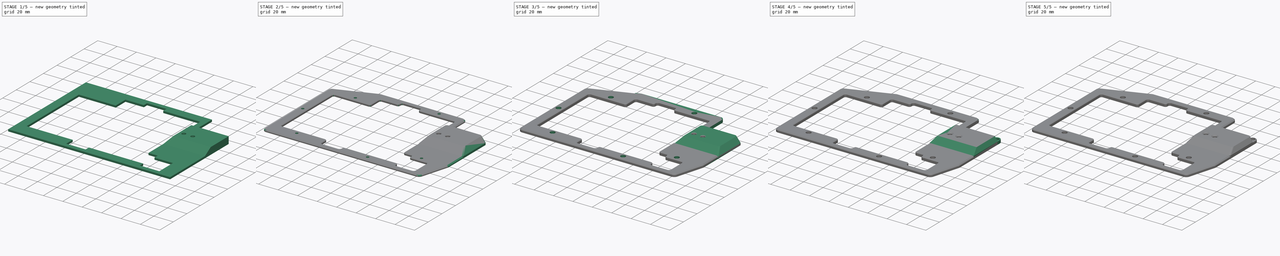
[diagram: build sequence overview — one tinted view per stage of 5, left to right]
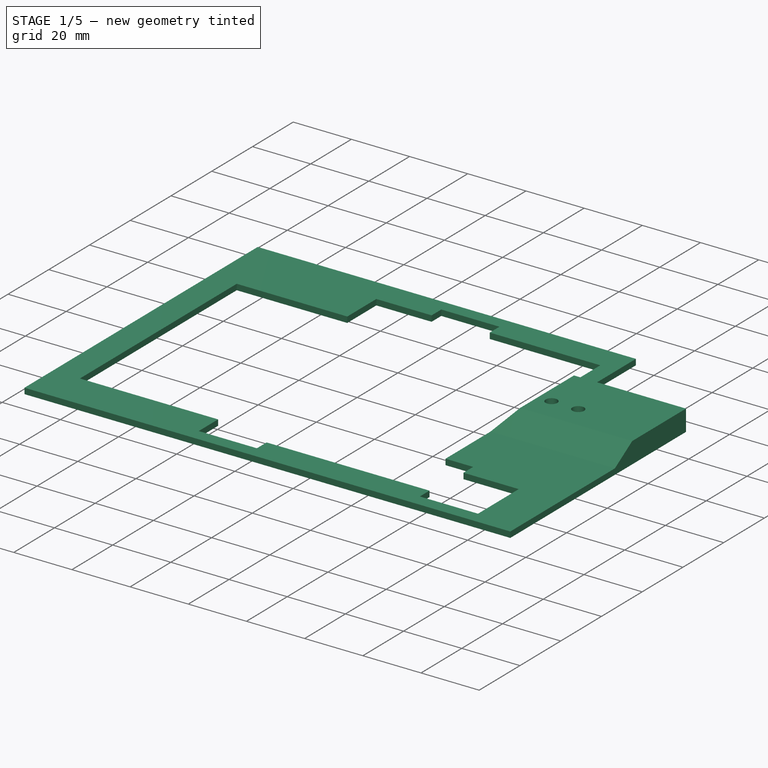
[diagram: stage 1 of 5 — iso view after this stage's code; geometry added in this stage tinted green]
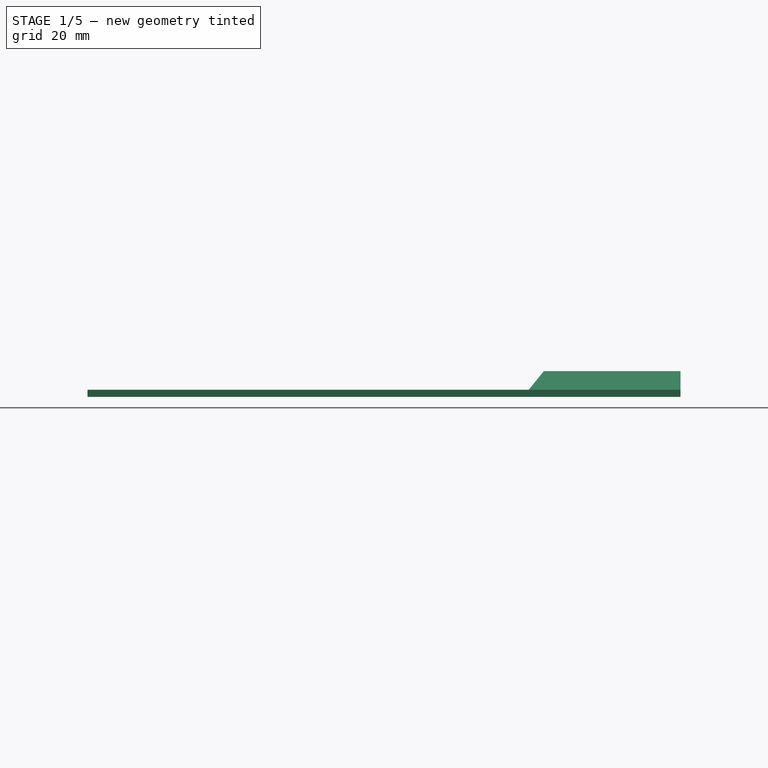
[diagram: stage 1 of 5 — front view after this stage's code; geometry added in this stage tinted green]
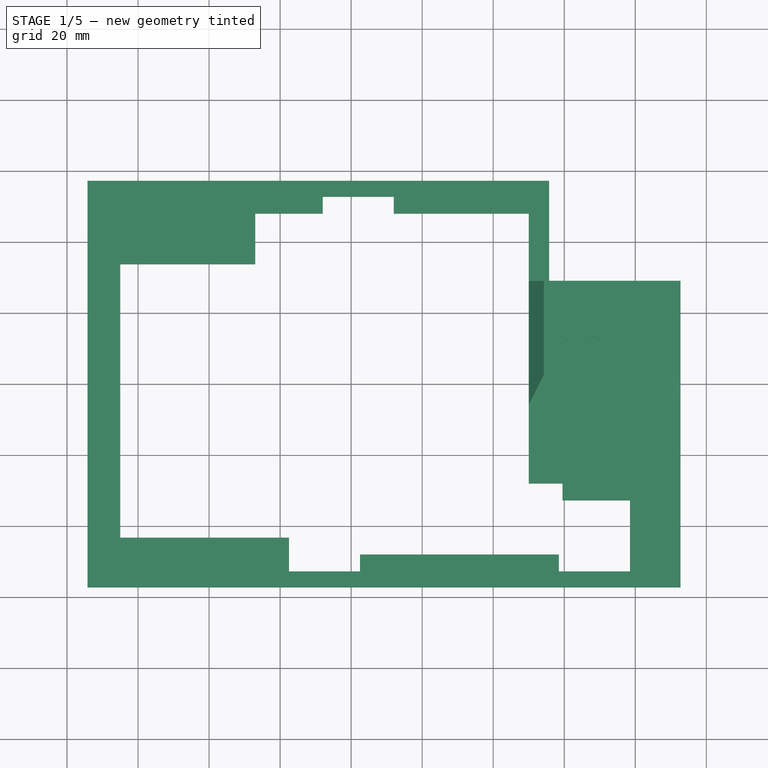
[diagram: stage 1 of 5 — top view after this stage's code; geometry added in this stage tinted green]
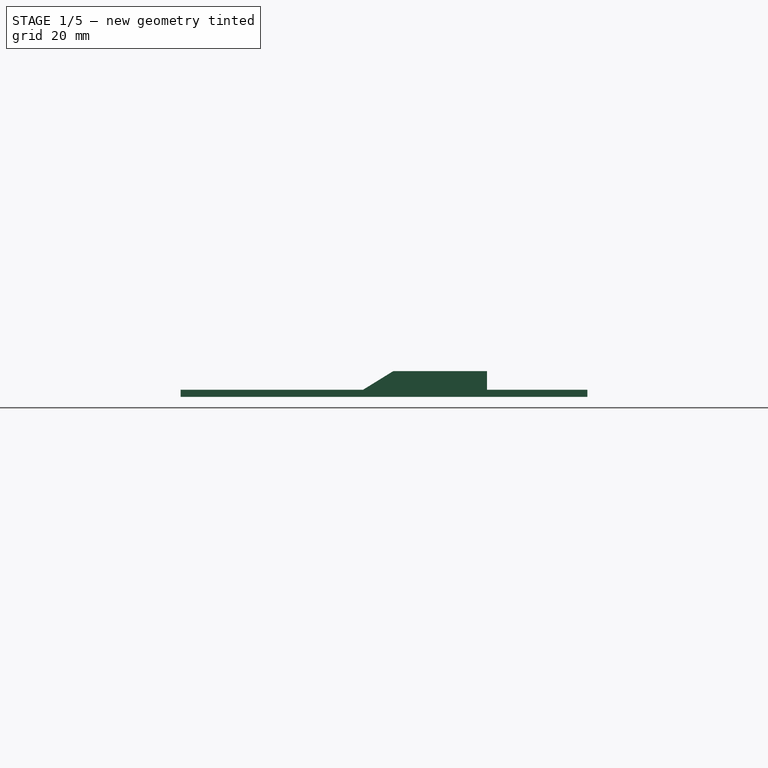
[diagram: stage 1 of 5 — right view after this stage's code; geometry added in this stage tinted green]
FCSTD DOCUMENT  (FreeCAD 0.21R33771 (Git))
Label: top
License: All rights reserved
LicenseURL: http://en.wikipedia.org/wiki/All_rights_reserved
objects: Sketcher::SketchObject×27, PartDesign::Pocket×21, PartDesign::Pad×18, PartDesign::Fillet×7, Part::FeaturePython×5, PartDesign::Chamfer×4, PartDesign::SubtractivePipe×3, PartDesign::Plane×2, PartDesign::Body×2, Spreadsheet::Sheet×1, App::DocumentObjectGroup×1, Part::MultiFuse×1, PartDesign::FeatureBase×1
note: 144 computed .brp shape members not serialized (recipe doc carries the construction recipe); baked Part::Feature solids carry a one-line shape summary decoded from their .brp

FEATURE [Sketcher::SketchObject] Sketch
  FullyConstrained = true
  MapMode = 5
  Support = -> [XY_Plane]
  expr: Constraints[10] = Spreadsheet.sw_wi
  expr: Constraints[11] = Spreadsheet.sw_he
  expr: Constraints[23] = Spreadsheet.pl_spacing
  expr: Constraints[343] = Spreadsheet.pl_spacing
  expr: Constraints[344] = Spreadsheet.pl_spacing
  expr: Constraints[345] = Spreadsheet.pl_spacing
  expr: Constraints[346] = Spreadsheet.pl_spacing
  expr: Constraints[347] = Spreadsheet.pl_spacing
  expr: Constraints[348] = Spreadsheet.pl_sp4
  expr: Constraints[349] = Spreadsheet.pl_sp4
  expr: Constraints[350] = Spreadsheet.pl_sp2
  expr: Constraints[351] = Spreadsheet.pl_spacing
  expr: Constraints[352] = Spreadsheet.pl_spacing
  expr: Constraints[353] = Spreadsheet.pl_spacing
  expr: Constraints[354] = Spreadsheet.pl_spacing
  expr: Constraints[355] = Spreadsheet.pl_spacing
  expr: Constraints[356] = Spreadsheet.pl_spacing
  expr: Constraints[357] = Spreadsheet.pl_spacing
  expr: Constraints[358] = Spreadsheet.pl_spacing
  expr: Constraints[359] = Spreadsheet.pl_spacing
  expr: Constraints[360] = Spreadsheet.pl_spacing
  expr: Constraints[361] = Spreadsheet.pl_spacing
  expr: Constraints[362] = Spreadsheet.pl_spacing
  expr: Constraints[363] = Spreadsheet.pl_spacing
  expr: Constraints[364] = Spreadsheet.pl_spacing
  expr: Constraints[365] = Spreadsheet.pl_spacing
  expr: Constraints[366] = Spreadsheet.pl_spacing
  expr: Constraints[367] = Spreadsheet.pl_spacing
  expr: Constraints[368] = Spreadsheet.pl_spacing
  expr: Constraints[369] = Spreadsheet.pl_spacing
  expr: Constraints[370] = Spreadsheet.pl_spacing
  expr: Constraints[373] = Spreadsheet.pl_sp4
  expr: Constraints[375] = Spreadsheet.pl_sp4
  expr: Constraints[37] = Spreadsheet.pl_spacing
  expr: Constraints[416] = Spreadsheet.pl_edge
  expr: Constraints[417] = Spreadsheet.pl_edge
  expr: Constraints[418] = Spreadsheet.pl_edge
  expr: Constraints[419] = Spreadsheet.pl_edge
  expr: Constraints[420] = Spreadsheet.pl_edge
  expr: Constraints[421] = Spreadsheet.pl_edge
  expr: Constraints[422] = Spreadsheet.pl_edge
  expr: Constraints[423] = Spreadsheet.pl_edge
  expr: Constraints[424] = Spreadsheet.pl_edge
  expr: Constraints[425] = Spreadsheet.pl_edge
  expr: Constraints[426] = Spreadsheet.pl_edge
  expr: Constraints[427] = Spreadsheet.pl_edge
  expr: Constraints[428] = Spreadsheet.pl_edge
  expr: Constraints[429] = Spreadsheet.pl_edge
  expr: Constraints[430] = Spreadsheet.pl_edge
  expr: Constraints[431] = Spreadsheet.pl_edge
  expr: Constraints[432] = Spreadsheet.pl_edge
  expr: Constraints[433] = Spreadsheet.pl_edge
  expr: Constraints[434] = Spreadsheet.pl_edge
  expr: Constraints[435] = Spreadsheet.pl_edge
  expr: Constraints[445] = Spreadsheet.pl_case_ext
  expr: Constraints[446] = Spreadsheet.pl_case
  expr: Constraints[447] = Spreadsheet.pl_case
  expr: Constraints[50] = Spreadsheet.pl_spacing
  sketch-geometry (169):
    g0: LineSegment StartX=-7.075 StartY=7.075 StartZ=0 EndX=-7.075 EndY=-7.075 EndZ=0
    g1: LineSegment StartX=-7.075 StartY=-7.075 StartZ=0 EndX=7.075 EndY=-7.075 EndZ=0
    g2: LineSegment StartX=7.075 StartY=-7.075 StartZ=0 EndX=7.075 EndY=7.075 EndZ=0
    g3: LineSegment StartX=7.075 StartY=7.075 StartZ=0 EndX=-7.075 EndY=7.075 EndZ=0
    g4: GeomPoint X=0 Y=0 Z=0
    g5: LineSegment StartX=-7.075 StartY=-11.925 StartZ=0 EndX=-7.075 EndY=-26.075 EndZ=0
    g6: LineSegment StartX=-7.075 StartY=-26.075 StartZ=0 EndX=7.075 EndY=-26.075 EndZ=0
    g7: LineSegment StartX=7.075 StartY=-26.075 StartZ=0 EndX=7.075 EndY=-11.925 EndZ=0
    g8: LineSegment StartX=7.075 StartY=-11.925 StartZ=0 EndX=-7.075 EndY=-11.925 EndZ=0
    g9: GeomPoint X=0 Y=-19 Z=0
    g10: LineSegment StartX=-7.075 StartY=26.075 StartZ=0 EndX=-7.075 EndY=11.925 EndZ=0
    g11: LineSegment StartX=-7.075 StartY=11.925 StartZ=0 EndX=7.075 EndY=11.925 EndZ=0
    g12: LineSegment StartX=7.075 StartY=11.925 StartZ=0 EndX=7.075 EndY=26.075 EndZ=0
    g13: LineSegment StartX=7.075 StartY=26.075 StartZ=0 EndX=-7.075 EndY=26.075 EndZ=0
    g14: GeomPoint X=0 Y=19 Z=0
    g15: LineSegment StartX=-7.075 StartY=45.075 StartZ=0 EndX=-7.075 EndY=30.925 EndZ=0
    g16: LineSegment StartX=-7.075 StartY=30.925 StartZ=0 EndX=7.075 EndY=30.925 EndZ=0
    g17: LineSegment StartX=7.075 StartY=30.925 StartZ=0 EndX=7.075 EndY=45.075 EndZ=0
    g18: LineSegment StartX=7.075 StartY=45.075 StartZ=0 EndX=-7.075 EndY=45.075 EndZ=0
    g19: GeomPoint X=0 Y=38 Z=0
    g20: LineSegment StartX=-26.075 StartY=45.075 StartZ=0 EndX=-26.075 EndY=30.925 EndZ=0
    g21: LineSegment StartX=-26.075 StartY=30.925 StartZ=0 EndX=-11.925 EndY=30.925 EndZ=0
    g22: LineSegment StartX=-11.925 StartY=30.925 StartZ=0 EndX=-11.925 EndY=45.075 EndZ=0
    g23: LineSegment StartX=-11.925 StartY=45.075 StartZ=0 EndX=-26.075 EndY=45.075 EndZ=0
    g24: GeomPoint X=-19 Y=38 Z=0
    g25: LineSegment StartX=-26.075 StartY=26.075 StartZ=0 EndX=-26.075 EndY=11.925 EndZ=0
    g26: LineSegment StartX=-26.075 StartY=11.925 StartZ=0 EndX=-11.925 EndY=11.925 EndZ=0
    g27: LineSegment StartX=-11.925 StartY=11.925 StartZ=0 EndX=-11.925 EndY=26.075 EndZ=0
    g28: LineSegment StartX=-11.925 StartY=26.075 StartZ=0 EndX=-26.075 EndY=26.075 EndZ=0
    g29: GeomPoint X=-19 Y=19 Z=0
    g30: LineSegment StartX=-26.075 StartY=7.075 StartZ=0 EndX=-26.075 EndY=-7.075 EndZ=0
    g31: LineSegment StartX=-26.075 StartY=-7.075 StartZ=0 EndX=-11.925 EndY=-7.075 EndZ=0
    g32: LineSegment StartX=-11.925 StartY=-7.075 StartZ=0 EndX=-11.925 EndY=7.075 EndZ=0
    g33: LineSegment StartX=-11.925 StartY=7.075 StartZ=0 EndX=-26.075 EndY=7.075 EndZ=0
    g34: GeomPoint X=-19 Y=0 Z=0
    g35: LineSegment StartX=-26.075 StartY=-11.925 StartZ=0 EndX=-26.075 EndY=-26.075 EndZ=0
    g36: LineSegment StartX=-26.075 StartY=-26.075 StartZ=0 EndX=-11.925 EndY=-26.075 EndZ=0
    g37: LineSegment StartX=-11.925 StartY=-26.075 StartZ=0 EndX=-11.925 EndY=-11.925 EndZ=0
    g38: LineSegment StartX=-11.925 StartY=-11.925 StartZ=0 EndX=-26.075 EndY=-11.925 EndZ=0
    g39: GeomPoint X=-19 Y=-19 Z=0
    g40: LineSegment StartX=-45.075 StartY=49.825 StartZ=0 EndX=-45.075 EndY=35.675 EndZ=0
    g41: LineSegment StartX=-45.075 StartY=35.675 StartZ=0 EndX=-30.925 EndY=35.675 EndZ=0
    g42: LineSegment StartX=-30.925 StartY=35.675 StartZ=0 EndX=-30.925 EndY=49.825 EndZ=0
    g43: LineSegment StartX=-30.925 StartY=49.825 StartZ=0 EndX=-45.075 EndY=49.825 EndZ=0
    g44: GeomPoint X=-38 Y=42.75 Z=0
    g45: LineSegment StartX=-45.075 StartY=30.825 StartZ=0 EndX=-45.075 EndY=16.675 EndZ=0
    g46: LineSegment StartX=-45.075 StartY=16.675 StartZ=0 EndX=-30.925 EndY=16.675 EndZ=0
    g47: LineSegment StartX=-30.925 StartY=16.675 StartZ=0 EndX=-30.925 EndY=30.825 EndZ=0
    g48: LineSegment StartX=-30.925 StartY=30.825 StartZ=0 EndX=-45.075 EndY=30.825 EndZ=0
    g49: GeomPoint X=-38 Y=23.75 Z=0
    g50: LineSegment StartX=-45.075 StartY=11.825 StartZ=0 EndX=-45.075 EndY=-2.325 EndZ=0
    g51: LineSegment StartX=-45.075 StartY=-2.325 StartZ=0 EndX=-30.925 EndY=-2.325 EndZ=0
    g52: LineSegment StartX=-30.925 StartY=-2.325 StartZ=0 EndX=-30.925 EndY=11.825 EndZ=0
    g53: LineSegment StartX=-30.925 StartY=11.825 StartZ=0 EndX=-45.075 EndY=11.825 EndZ=0
    g54: GeomPoint X=-38 Y=4.75 Z=0
    g55: LineSegment StartX=-45.075 StartY=-7.175 StartZ=0 EndX=-45.075 EndY=-21.325 EndZ=0
    g56: LineSegment StartX=-45.075 StartY=-21.325 StartZ=0 EndX=-30.925 EndY=-21.325 EndZ=0
    g57: LineSegment StartX=-30.925 StartY=-21.325 StartZ=0 EndX=-30.925 EndY=-7.175 EndZ=0
    g58: LineSegment StartX=-30.925 StartY=-7.175 StartZ=0 EndX=-45.075 EndY=-7.175 EndZ=0
    g59: GeomPoint X=-38 Y=-14.25 Z=0
    g60: LineSegment StartX=-64.075 StartY=45.075 StartZ=0 EndX=-64.075 EndY=30.925 EndZ=0
    g61: LineSegment StartX=-64.075 StartY=30.925 StartZ=0 EndX=-49.925 EndY=30.925 EndZ=0
    g62: LineSegment StartX=-49.925 StartY=30.925 StartZ=0 EndX=-49.925 EndY=45.075 EndZ=0
    g63: LineSegment StartX=-49.925 StartY=45.075 StartZ=0 EndX=-64.075 EndY=45.075 EndZ=0
    g64: GeomPoint X=-57 Y=38 Z=0
    g65: LineSegment StartX=-64.075 StartY=26.075 StartZ=0 EndX=-64.075 EndY=11.925 EndZ=0
    g66: LineSegment StartX=-64.075 StartY=11.925 StartZ=0 EndX=-49.925 EndY=11.925 EndZ=0
    g67: LineSegment StartX=-49.925 StartY=11.925 StartZ=0 EndX=-49.925 EndY=26.075 EndZ=0
    g68: LineSegment StartX=-49.925 StartY=26.075 StartZ=0 EndX=-64.075 EndY=26.075 EndZ=0
    g69: GeomPoint X=-57 Y=19 Z=0
    g70: LineSegment StartX=-64.075 StartY=7.075 StartZ=0 EndX=-64.075 EndY=-7.075 EndZ=0
    g71: LineSegment StartX=-64.075 StartY=-7.075 StartZ=0 EndX=-49.925 EndY=-7.075 EndZ=0
    g72: LineSegment StartX=-49.925 StartY=-7.075 StartZ=0 EndX=-49.925 EndY=7.075 EndZ=0
    g73: LineSegment StartX=-49.925 StartY=7.075 StartZ=0 EndX=-64.075 EndY=7.075 EndZ=0
    g74: GeomPoint X=-57 Y=0 Z=0
    g75: LineSegment StartX=-64.075 StartY=-11.925 StartZ=0 EndX=-64.075 EndY=-26.075 EndZ=0
    g76: LineSegment StartX=-64.075 StartY=-26.075 StartZ=0 EndX=-49.925 EndY=-26.075 EndZ=0
    g77: LineSegment StartX=-49.925 StartY=-26.075 StartZ=0 EndX=-49.925 EndY=-11.925 EndZ=0
    g78: LineSegment StartX=-49.925 StartY=-11.925 StartZ=0 EndX=-64.075 EndY=-11.925 EndZ=0
    g79: GeomPoint X=-57 Y=-19 Z=0
    g80: LineSegment StartX=-83.075 StartY=30.825 StartZ=0 EndX=-83.075 EndY=16.675 EndZ=0
    g81: LineSegment StartX=-83.075 StartY=16.675 StartZ=0 EndX=-68.925 EndY=16.675 EndZ=0
    g82: LineSegment StartX=-68.925 StartY=16.675 StartZ=0 EndX=-68.925 EndY=30.825 EndZ=0
    g83: LineSegment StartX=-68.925 StartY=30.825 StartZ=0 EndX=-83.075 EndY=30.825 EndZ=0
    g84: GeomPoint X=-76 Y=23.75 Z=0
    g85: LineSegment StartX=-102.075 StartY=30.825 StartZ=0 EndX=-102.075 EndY=16.675 EndZ=0
    g86: LineSegment StartX=-102.075 StartY=16.675 StartZ=0 EndX=-87.925 EndY=16.675 EndZ=0
    g87: LineSegment StartX=-87.925 StartY=16.675 StartZ=0 EndX=-87.925 EndY=30.825 EndZ=0
    g88: LineSegment StartX=-87.925 StartY=30.825 StartZ=0 EndX=-102.075 EndY=30.825 EndZ=0
    g89: GeomPoint X=-95 Y=23.75 Z=0
    g90: LineSegment StartX=-83.075 StartY=11.825 StartZ=0 EndX=-83.075 EndY=-2.325 EndZ=0
    g91: LineSegment StartX=-83.075 StartY=-2.325 StartZ=0 EndX=-68.925 EndY=-2.325 EndZ=0
    g92: LineSegment StartX=-68.925 StartY=-2.325 StartZ=0 EndX=-68.925 EndY=11.825 EndZ=0
    g93: LineSegment StartX=-68.925 StartY=11.825 StartZ=0 EndX=-83.075 EndY=11.825 EndZ=0
    g94: GeomPoint X=-76 Y=4.75 Z=0
    g95: LineSegment StartX=-83.075 StartY=-7.175 StartZ=0 EndX=-83.075 EndY=-21.325 EndZ=0
    g96: LineSegment StartX=-83.075 StartY=-21.325 StartZ=0 EndX=-68.925 EndY=-21.325 EndZ=0
    g97: LineSegment StartX=-68.925 StartY=-21.325 StartZ=0 EndX=-68.925 EndY=-7.175 EndZ=0
    g98: LineSegment StartX=-68.925 StartY=-7.175 StartZ=0 EndX=-83.075 EndY=-7.175 EndZ=0
    g99: GeomPoint X=-76 Y=-14.25 Z=0
    g100: LineSegment StartX=-83.075 StartY=-26.175 StartZ=0 EndX=-83.075 EndY=-40.325 EndZ=0
    g101: LineSegment StartX=-83.075 StartY=-40.325 StartZ=0 EndX=-68.925 EndY=-40.325 EndZ=0
    g102: LineSegment StartX=-68.925 StartY=-40.325 StartZ=0 EndX=-68.925 EndY=-26.175 EndZ=0
    g103: LineSegment StartX=-68.925 StartY=-26.175 StartZ=0 EndX=-83.075 EndY=-26.175 EndZ=0
    g104: GeomPoint X=-76 Y=-33.25 Z=0
    g105: LineSegment StartX=-102.075 StartY=11.825 StartZ=0 EndX=-102.075 EndY=-2.325 EndZ=0
    g106: LineSegment StartX=-102.075 StartY=-2.325 StartZ=0 EndX=-87.925 EndY=-2.325 EndZ=0
    g107: LineSegment StartX=-87.925 StartY=-2.325 StartZ=0 EndX=-87.925 EndY=11.825 EndZ=0
    g108: LineSegment StartX=-87.925 StartY=11.825 StartZ=0 EndX=-102.075 EndY=11.825 EndZ=0
    g109: GeomPoint X=-95 Y=4.75 Z=0
    g110: LineSegment StartX=-102.075 StartY=-7.175 StartZ=0 EndX=-102.075 EndY=-21.325 EndZ=0
    g111: LineSegment StartX=-102.075 StartY=-21.325 StartZ=0 EndX=-87.925 EndY=-21.325 EndZ=0
    g112: LineSegment StartX=-87.925 StartY=-21.325 StartZ=0 EndX=-87.925 EndY=-7.175 EndZ=0
    g113: LineSegment StartX=-87.925 StartY=-7.175 StartZ=0 EndX=-102.075 EndY=-7.175 EndZ=0
    g114: GeomPoint X=-95 Y=-14.25 Z=0
    g115: LineSegment StartX=-102.075 StartY=-26.175 StartZ=0 EndX=-102.075 EndY=-40.325 EndZ=0
    g116: LineSegment StartX=-102.075 StartY=-40.325 StartZ=0 EndX=-87.925 EndY=-40.325 EndZ=0
    g117: LineSegment StartX=-87.925 StartY=-40.325 StartZ=0 EndX=-87.925 EndY=-26.175 EndZ=0
    g118: LineSegment StartX=-87.925 StartY=-26.175 StartZ=0 EndX=-102.075 EndY=-26.175 EndZ=0
    g119: GeomPoint X=-95 Y=-33.25 Z=0
    g120: LineSegment StartX=-16.575 StartY=-30.925 StartZ=0 EndX=-16.575 EndY=-45.075 EndZ=0
    g121: LineSegment StartX=-16.575 StartY=-45.075 StartZ=0 EndX=-2.425 EndY=-45.075 EndZ=0
    g122: LineSegment StartX=-2.425 StartY=-45.075 StartZ=0 EndX=-2.425 EndY=-30.925 EndZ=0
    g123: LineSegment StartX=-2.425 StartY=-30.925 StartZ=0 EndX=-16.575 EndY=-30.925 EndZ=0
    g124: GeomPoint X=-9.5 Y=-38 Z=0
    g125: LineSegment StartX=2.425 StartY=-30.925 StartZ=0 EndX=2.425 EndY=-45.075 EndZ=0
    g126: LineSegment StartX=2.425 StartY=-45.075 StartZ=0 EndX=16.575 EndY=-45.075 EndZ=0
    g127: LineSegment StartX=16.575 StartY=-45.075 StartZ=0 EndX=16.575 EndY=-30.925 EndZ=0
    g128: LineSegment StartX=16.575 StartY=-30.925 StartZ=0 EndX=2.425 EndY=-30.925 EndZ=0
    g129: GeomPoint X=9.5 Y=-38 Z=0
    g130: LineSegment StartX=-35.575 StartY=-30.925 StartZ=0 EndX=-35.575 EndY=-45.075 EndZ=0
    g131: LineSegment StartX=-35.575 StartY=-45.075 StartZ=0 EndX=-21.425 EndY=-45.075 EndZ=0
    g132: LineSegment StartX=-21.425 StartY=-45.075 StartZ=0 EndX=-21.425 EndY=-30.925 EndZ=0
    g133: LineSegment StartX=-21.425 StartY=-30.925 StartZ=0 EndX=-35.575 EndY=-30.925 EndZ=0
    g134: GeomPoint X=-28.5 Y=-38 Z=0
    g135: LineSegment StartX=21.425 StartY=-35.675 StartZ=0 EndX=21.425 EndY=-49.825 EndZ=0
    g136: LineSegment StartX=21.425 StartY=-49.825 StartZ=0 EndX=35.575 EndY=-49.825 EndZ=0
    g137: LineSegment StartX=35.575 StartY=-49.825 StartZ=0 EndX=35.575 EndY=-35.675 EndZ=0
    g138: LineSegment StartX=35.575 StartY=-35.675 StartZ=0 EndX=21.425 EndY=-35.675 EndZ=0
    g139: GeomPoint X=28.5 Y=-42.75 Z=0
    g140: LineSegment StartX=-54.575 StartY=-35.675 StartZ=0 EndX=-54.575 EndY=-49.825 EndZ=0
    g141: LineSegment StartX=-54.575 StartY=-49.825 StartZ=0 EndX=-40.425 EndY=-49.825 EndZ=0
    g142: LineSegment StartX=-40.425 StartY=-49.825 StartZ=0 EndX=-40.425 EndY=-35.675 EndZ=0
    g143: LineSegment StartX=-40.425 StartY=-35.675 StartZ=0 EndX=-54.575 EndY=-35.675 EndZ=0
    g144: GeomPoint X=-47.5 Y=-42.75 Z=0
    g145: LineSegment StartX=10 StartY=48 StartZ=0 EndX=10 EndY=-28 EndZ=0
    g146: LineSegment StartX=10 StartY=-28 StartZ=0 EndX=19.5 EndY=-28 EndZ=0
    g147: LineSegment StartX=19.5 StartY=-28 StartZ=0 EndX=19.5 EndY=-32.75 EndZ=0
    g148: LineSegment StartX=19.5 StartY=-32.75 StartZ=0 EndX=38.5 EndY=-32.75 EndZ=0
    g149: LineSegment StartX=38.5 StartY=-32.75 StartZ=0 EndX=38.5 EndY=-52.75 EndZ=0
    g150: LineSegment StartX=38.5 StartY=-52.75 StartZ=0 EndX=18.5 EndY=-52.75 EndZ=0
    g151: LineSegment StartX=18.5 StartY=-52.75 StartZ=0 EndX=18.5 EndY=-48 EndZ=0
    g152: LineSegment StartX=18.5 StartY=-48 StartZ=0 EndX=-37.5 EndY=-48 EndZ=0
    g153: LineSegment StartX=-37.5 StartY=-48 StartZ=0 EndX=-37.5 EndY=-52.75 EndZ=0
    g154: LineSegment StartX=-37.5 StartY=-52.75 StartZ=0 EndX=-57.5 EndY=-52.75 EndZ=0
    g155: LineSegment StartX=-57.5 StartY=-52.75 StartZ=0 EndX=-57.5 EndY=-43.25 EndZ=0
    g156: LineSegment StartX=-57.5 StartY=-43.25 StartZ=0 EndX=-105 EndY=-43.25 EndZ=0
    g157: LineSegment StartX=-105 StartY=-43.25 StartZ=0 EndX=-105 EndY=33.75 EndZ=0
    g158: LineSegment StartX=-105 StartY=33.75 StartZ=0 EndX=-67 EndY=33.75 EndZ=0
    g159: LineSegment StartX=-67 StartY=33.75 StartZ=0 EndX=-67 EndY=48 EndZ=0
    g160: LineSegment StartX=-67 StartY=48 StartZ=0 EndX=-48 EndY=48 EndZ=0
    g161: LineSegment StartX=-48 StartY=48 StartZ=0 EndX=-48 EndY=52.75 EndZ=0
    g162: LineSegment StartX=-48 StartY=52.75 StartZ=0 EndX=-28 EndY=52.75 EndZ=0
    g163: LineSegment StartX=-28 StartY=52.75 StartZ=0 EndX=-28 EndY=48 EndZ=0
    g164: LineSegment StartX=-28 StartY=48 StartZ=0 EndX=10 EndY=48 EndZ=0
    g165: LineSegment StartX=52.75 StartY=57.25 StartZ=0 EndX=-114.25 EndY=57.25 EndZ=0
    g166: LineSegment StartX=-114.25 StartY=57.25 StartZ=0 EndX=-114.25 EndY=-57.25 EndZ=0
    g167: LineSegment StartX=-114.25 StartY=-57.25 StartZ=0 EndX=52.75 EndY=-57.25 EndZ=0
    g168: LineSegment StartX=52.75 StartY=-57.25 StartZ=0 EndX=52.75 EndY=57.25 EndZ=0
  constraints (448):
    c: Coincident(g0,g1)
    c: Coincident(g1,g2)
    c: Coincident(g2,g3)
    c: Coincident(g3,g0)
    c: Horizontal(g1)
    c: Horizontal(g3)
    c: Vertical(g0)
    c: Vertical(g2)
    c: Symmetric(g1,g0,g4)
    c: Coincident(g4,g-1)
    c: DistanceX(g3,g3) = 14.15
    c: DistanceY(g0,g0) = 14.15
    c: Coincident(g5,g6)
    c: Coincident(g6,g7)
    c: Coincident(g7,g8)
    c: Coincident(g8,g5)
    c: Horizontal(g6)
    c: Horizontal(g8)
    c: Vertical(g5)
    c: Vertical(g7)
    c: Symmetric(g6,g5,g9)
    c: Equal(g3,g8) = 14.15
    c: Equal(g0,g5) = 14.15
    c: DistanceY(g9,g4) = 19
    c: Vertical(g9,g4)
    c: Coincident(g10,g11)
    c: Coincident(g11,g12)
    c: Coincident(g12,g13)
    c: Coincident(g13,g10)
    c: Horizontal(g11)
    c: Horizontal(g13)
    c: Vertical(g10)
    c: Vertical(g12)
    c: Symmetric(g11,g10,g14)
    c: Equal(g3,g13) = 14.15
    c: Equal(g0,g10) = 14.15
    c: Vertical(g4,g14)
    c: DistanceY(g4,g14) = 19
    c: Coincident(g15,g16)
    c: Coincident(g16,g17)
    c: Coincident(g17,g18)
    c: Coincident(g18,g15)
    c: Horizontal(g16)
    c: Horizontal(g18)
    c: Vertical(g15)
    c: Vertical(g17)
    c: Symmetric(g16,g15,g19)
    c: Equal(g3,g18) = 14.15
    c: Equal(g0,g15) = 14.15
    c: Vertical(g19,g4)
    c: DistanceY(g14,g19) = 19
    c: Coincident(g20,g21)
    c: Coincident(g21,g22)
    c: Coincident(g22,g23)
    c: Coincident(g23,g20)
    c: Horizontal(g21)
    c: Horizontal(g23)
    c: Vertical(g20)
    c: Vertical(g22)
    c: Symmetric(g21,g20,g24)
    c: Equal(g3,g23) = 14.15
    c: Equal(g0,g20) = 14.15
    c: Coincident(g25,g26)
    c: Coincident(g26,g27)
    c: Coincident(g27,g28)
    c: Coincident(g28,g25)
    c: Horizontal(g26)
    c: Horizontal(g28)
    c: Vertical(g25)
    c: Vertical(g27)
    c: Symmetric(g26,g25,g29)
    c: Equal(g3,g28) = 14.15
    c: Equal(g0,g25) = 14.15
    c: Coincident(g30,g31)
    c: Coincident(g31,g32)
    c: Coincident(g32,g33)
    c: Coincident(g33,g30)
    c: Horizontal(g31)
    c: Horizontal(g33)
    c: Vertical(g30)
    c: Vertical(g32)
    c: Symmetric(g31,g30,g34)
    c: Equal(g3,g33) = 14.15
    c: Equal(g0,g30) = 14.15
    c: Coincident(g35,g36)
    c: Coincident(g36,g37)
    c: Coincident(g37,g38)
    c: Coincident(g38,g35)
    c: Horizontal(g36)
    c: Horizontal(g38)
    c: Vertical(g35)
    c: Vertical(g37)
    c: Symmetric(g36,g35,g39)
    c: Equal(g3,g38) = 14.15
    c: Equal(g0,g35) = 14.15
    c: Coincident(g40,g41)
    c: Coincident(g41,g42)
    c: Coincident(g42,g43)
    c: Coincident(g43,g40)
    c: Horizontal(g41)
    c: Horizontal(g43)
    c: Vertical(g40)
    c: Vertical(g42)
    c: Symmetric(g41,g40,g44)
    c: Equal(g3,g43) = 14.15
    c: Equal(g0,g40) = 14.15
    c: Coincident(g45,g46)
    c: Coincident(g46,g47)
    c: Coincident(g47,g48)
    c: Coincident(g48,g45)
    c: Horizontal(g46)
    c: Horizontal(g48)
    c: Vertical(g45)
    c: Vertical(g47)
    c: Symmetric(g46,g45,g49)
    c: Equal(g3,g48) = 14.15
    c: Equal(g0,g45) = 14.15
    c: Coincident(g50,g51)
    c: Coincident(g51,g52)
    c: Coincident(g52,g53)
    c: Coincident(g53,g50)
    c: Horizontal(g51)
    c: Horizontal(g53)
    c: Vertical(g50)
    c: Vertical(g52)
    c: Symmetric(g51,g50,g54)
    c: Equal(g3,g53) = 14.15
    c: Equal(g0,g50) = 14.15
    c: Coincident(g55,g56)
    c: Coincident(g56,g57)
    c: Coincident(g57,g58)
    c: Coincident(g58,g55)
    c: Horizontal(g56)
    c: Horizontal(g58)
    c: Vertical(g55)
    c: Vertical(g57)
    c: Symmetric(g56,g55,g59)
    c: Equal(g3,g58) = 14.15
    c: Equal(g0,g55) = 14.15
    c: Coincident(g60,g61)
    c: Coincident(g61,g62)
    c: Coincident(g62,g63)
    c: Coincident(g63,g60)
    c: Horizontal(g61)
    c: Horizontal(g63)
    c: Vertical(g60)
    c: Vertical(g62)
    c: Symmetric(g61,g60,g64)
    c: Equal(g3,g63) = 14.15
    c: Equal(g0,g60) = 14.15
    c: Coincident(g65,g66)
    c: Coincident(g66,g67)
    c: Coincident(g67,g68)
    c: Coincident(g68,g65)
    c: Horizontal(g66)
    c: Horizontal(g68)
    c: Vertical(g65)
    c: Vertical(g67)
    c: Symmetric(g66,g65,g69)
    c: Equal(g3,g68) = 14.15
    c: Equal(g0,g65) = 14.15
    c: Coincident(g70,g71)
    c: Coincident(g71,g72)
    c: Coincident(g72,g73)
    c: Coincident(g73,g70)
    c: Horizontal(g71)
    c: Horizontal(g73)
    c: Vertical(g70)
    c: Vertical(g72)
    c: Symmetric(g71,g70,g74)
    c: Equal(g3,g73) = 14.15
    c: Equal(g0,g70) = 14.15
    c: Coincident(g75,g76)
    c: Coincident(g76,g77)
    c: Coincident(g77,g78)
    c: Coincident(g78,g75)
    c: Horizontal(g76)
    c: Horizontal(g78)
    c: Vertical(g75)
    c: Vertical(g77)
    c: Symmetric(g76,g75,g79)
    c: Equal(g3,g78) = 14.15
    c: Equal(g0,g75) = 14.15
    c: Coincident(g80,g81)
    c: Coincident(g81,g82)
    c: Coincident(g82,g83)
    c: Coincident(g83,g80)
    c: Horizontal(g81)
    c: Horizontal(g83)
    c: Vertical(g80)
    c: Vertical(g82)
    c: Symmetric(g81,g80,g84)
    c: Equal(g3,g83) = 14.15
    c: Equal(g0,g80) = 14.15
    c: Coincident(g85,g86)
    c: Coincident(g86,g87)
    c: Coincident(g87,g88)
    c: Coincident(g88,g85)
    c: Horizontal(g86)
    c: Horizontal(g88)
    c: Vertical(g85)
    c: Vertical(g87)
    c: Symmetric(g86,g85,g89)
    c: Equal(g3,g88) = 14.15
    c: Equal(g0,g85) = 14.15
    c: Coincident(g90,g91)
    c: Coincident(g91,g92)
    c: Coincident(g92,g93)
    c: Coincident(g93,g90)
    c: Horizontal(g91)
    c: Horizontal(g93)
    c: Vertical(g90)
    c: Vertical(g92)
    c: Symmetric(g91,g90,g94)
    c: Equal(g3,g93) = 14.15
    c: Equal(g0,g90) = 14.15
    c: Coincident(g95,g96)
    c: Coincident(g96,g97)
    c: Coincident(g97,g98)
    c: Coincident(g98,g95)
    c: Horizontal(g96)
    c: Horizontal(g98)
    c: Vertical(g95)
    c: Vertical(g97)
    c: Symmetric(g96,g95,g99)
    c: Equal(g3,g98) = 14.15
    c: Equal(g0,g95) = 14.15
    c: Coincident(g100,g101)
    c: Coincident(g101,g102)
    c: Coincident(g102,g103)
    c: Coincident(g103,g100)
    c: Horizontal(g101)
    c: Horizontal(g103)
    c: Vertical(g100)
    c: Vertical(g102)
    c: Symmetric(g101,g100,g104)
    c: Equal(g3,g103) = 14.15
    c: Equal(g0,g100) = 14.15
    c: Coincident(g105,g106)
    c: Coincident(g106,g107)
    c: Coincident(g107,g108)
    c: Coincident(g108,g105)
    c: Horizontal(g106)
    c: Horizontal(g108)
    c: Vertical(g105)
    c: Vertical(g107)
    c: Symmetric(g106,g105,g109)
    c: Equal(g3,g108) = 14.15
    c: Equal(g0,g105) = 14.15
    c: Coincident(g110,g111)
    c: Coincident(g111,g112)
    c: Coincident(g112,g113)
    c: Coincident(g113,g110)
    c: Horizontal(g111)
    c: Horizontal(g113)
    c: Vertical(g110)
    c: Vertical(g112)
    c: Symmetric(g111,g110,g114)
    c: Equal(g3,g113) = 14.15
    c: Equal(g0,g110) = 14.15
    c: Coincident(g115,g116)
    c: Coincident(g116,g117)
    c: Coincident(g117,g118)
    c: Coincident(g118,g115)
    c: Horizontal(g116)
    c: Horizontal(g118)
    c: Vertical(g115)
    c: Vertical(g117)
    c: Symmetric(g116,g115,g119)
    c: Equal(g3,g118) = 14.15
    c: Equal(g0,g115) = 14.15
    c: Coincident(g120,g121)
    c: Coincident(g121,g122)
    c: Coincident(g122,g123)
    c: Coincident(g123,g120)
    c: Horizontal(g121)
    c: Horizontal(g123)
    c: Vertical(g120)
    c: Vertical(g122)
    c: Symmetric(g121,g120,g124)
    c: Equal(g3,g123) = 14.15
    c: Equal(g0,g120) = 14.15
    c: Coincident(g125,g126)
    c: Coincident(g126,g127)
    c: Coincident(g127,g128)
    c: Coincident(g128,g125)
    c: Horizontal(g126)
    c: Horizontal(g128)
    c: Vertical(g125)
    c: Vertical(g127)
    c: Symmetric(g126,g125,g129)
    c: Equal(g3,g128) = 14.15
    c: Equal(g0,g125) = 14.15
    c: Coincident(g130,g131)
    c: Coincident(g131,g132)
    c: Coincident(g132,g133)
    c: Coincident(g133,g130)
    c: Horizontal(g131)
    c: Horizontal(g133)
    c: Vertical(g130)
    c: Vertical(g132)
    c: Symmetric(g131,g130,g134)
    c: Equal(g3,g133) = 14.15
    c: Equal(g0,g130) = 14.15
    c: Coincident(g135,g136)
    c: Coincident(g136,g137)
    c: Coincident(g137,g138)
    c: Coincident(g138,g135)
    c: Horizontal(g136)
    c: Horizontal(g138)
    c: Vertical(g135)
    c: Vertical(g137)
    c: Symmetric(g136,g135,g139)
    c: Equal(g3,g138) = 14.15
    c: Equal(g0,g135) = 14.15
    c: Coincident(g140,g141)
    c: Coincident(g141,g142)
    c: Coincident(g142,g143)
    c: Coincident(g143,g140)
    c: Horizontal(g141)
    c: Horizontal(g143)
    c: Vertical(g140)
    c: Vertical(g142)
    c: Symmetric(g141,g140,g144)
    c: Equal(g3,g143) = 14.15
    c: Equal(g0,g140) = 14.15
    c: Vertical(g39,g34)
    c: Vertical(g34,g29)
    c: Vertical(g29,g24)
    c: Vertical(g59,g54)
    c: Vertical(g54,g49)
    c: Vertical(g49,g44)
    c: Vertical(g79,g74)
    c: Vertical(g74,g69)
    c: Vertical(g69,g64)
    c: Vertical(g104,g99)
    c: Vertical(g99,g94)
    c: Vertical(g94,g84)
    c: Vertical(g119,g114)
    c: Vertical(g114,g109)
    c: Vertical(g109,g89)
    c: Horizontal(g134,g124)
    c: Horizontal(g124,g129)
    c: DistanceY(g129,g9) = 19
    c: DistanceX(g129,g139) = 19
    c: DistanceX(g124,g129) = 19
    c: DistanceX(g134,g124) = 19
    c: DistanceX(g144,g134) = 19
    c: DistanceY(g139,g129) = 4.75
    c: DistanceY(g144,g134) = 4.75
    c: DistanceX(g9,g129) = 9.5
    c: DistanceY(g39,g34) = 19
    c: DistanceY(g34,g29) = 19
    c: DistanceY(g29,g24) = 19
    c: DistanceY(g59,g54) = 19
    c: DistanceY(g54,g49) = 19
    c: DistanceY(g49,g44) = 19
    c: DistanceY(g79,g74) = 19
    c: DistanceY(g74,g69) = 19
    c: DistanceY(g69,g64) = 19
    c: DistanceY(g104,g99) = 19
    c: DistanceY(g99,g94) = 19
    c: DistanceY(g94,g84) = 19
    c: DistanceY(g119,g114) = 19
    c: DistanceY(g114,g109) = 19
    c: DistanceY(g109,g89) = 19
    c: DistanceX(g34,g4) = 19
    c: DistanceX(g54,g34) = 19
    c: DistanceX(g74,g54) = 19
    c: DistanceX(g99,g74) = 19
    c: DistanceX(g114,g99) = 19
    c: Horizontal(g34,g4)
    c: Horizontal(g74,g34)
    c: DistanceY(g34,g54) = 4.75
    c: Horizontal(g114,g99)
    c: DistanceY(g74,g94) = 4.75
    c: Vertical(g145)
    c: Coincident(g145,g146)
    c: Horizontal(g146)
    c: Coincident(g146,g147)
    c: Vertical(g147)
    c: Coincident(g147,g148)
    c: Horizontal(g148)
    c: Coincident(g148,g149)
    c: Vertical(g149)
    c: Coincident(g149,g150)
    c: Horizontal(g150)
    c: Coincident(g150,g151)
    c: Vertical(g151)
    c: Coincident(g151,g152)
    c: Horizontal(g152)
    c: Coincident(g152,g153)
    c: Vertical(g153)
    c: Coincident(g153,g154)
    c: Horizontal(g154)
    c: Coincident(g154,g155)
    c: Vertical(g155)
    c: Coincident(g155,g156)
    c: Horizontal(g156)
    c: Coincident(g156,g157)
    c: Vertical(g157)
    c: Coincident(g157,g158)
    c: Horizontal(g158)
    c: Coincident(g158,g159)
    c: Vertical(g159)
    c: Coincident(g159,g160)
    c: Horizontal(g160)
    c: Coincident(g160,g161)
    c: Vertical(g161)
    c: Coincident(g161,g162)
    c: Horizontal(g162)
    c: Coincident(g162,g163)
    c: Vertical(g163)
    c: Coincident(g163,g164)
    c: Coincident(g164,g145)
    c: Horizontal(g164)
    c: DistanceX(g19,g145) = 10
    c: DistanceX(g44,g162) = 10
    c: DistanceX(g161,g44) = 10
    c: DistanceX(g159,g64) = 10
    c: DistanceX(g157,g89) = 10
    c: DistanceX(g154,g144) = 10
    c: DistanceX(g144,g153) = 10
    c: DistanceX(g150,g139) = 10
    c: DistanceX(g139,g149) = 10
    c: DistanceX(g129,g146) = 10
    c: DistanceY(g19,g145) = 10
    c: DistanceY(g44,g162) = 10
    c: DistanceY(g64,g159) = 10
    c: DistanceY(g89,g157) = 10
    c: DistanceY(g156,g119) = 10
    c: DistanceY(g154,g144) = 10
    c: DistanceY(g152,g134) = 10
    c: DistanceY(g149,g139) = 10
    c: DistanceY(g139,g148) = 10
    c: DistanceY(g129,g146) = 10
    c: Coincident(g165,g166)
    c: Coincident(g166,g167)
    c: Coincident(g167,g168)
    c: Coincident(g168,g165)
    c: Horizontal(g165)
    c: Horizontal(g167)
    c: Vertical(g166)
    c: Vertical(g168)
    c: DistanceX(g4,g165) = 52.75
    c: DistanceX(g165,g89) = 19.25
    c: DistanceY(g44,g165) = 14.5
    c: DistanceY(g166,g144) = 14.5
FEATURE [Spreadsheet::Sheet] Spreadsheet
  cells = B2='Switch Opening; B3='width; C3(sw_wi)=14.15; B4='height; C4(sw_he)=14.15; B5='thickness; C5=1.2; D5(sw_th)==C14 - C5; B6='clearance; C6=0.8; D6(sw_cl)==C3 + C6 * 2; B13='Plate; G13='Hole pattern; B14='thickness; C14(pl_thickness)=2.4; G14='edge distance; H14(hole_ext)=4.85; B15='spacing; C15(pl_spacing)=19; G15='internal edge; H15(hole_int)=4.4; B16='spacing/2; C16(pl_sp2)==C15 / 2; G16='dia; H16(hole_dia)=2.8; B17='spcing/4; C17(pl_sp4)==C15 / 4; B18='edge offset; D18(pl_edge)=10; B19='case edge; C19==25 / 2 + 2; D19(pl_case)==C19; E19(pl_case_ext)==D19 + C17
FEATURE [PartDesign::Pad] Pad  label="Base Plate Pad"
  Direction = (0,0,1)
  Length = 2
  Length2 = 10
  Profile = -> Sketch
  ReferenceAxis = -> Sketch [N_Axis]
  Type = 0
FEATURE [Sketcher::SketchObject] Sketch001
  ExternalGeometry = -> [Pad]
  FullyConstrained = true
  MapMode = 5
  Placement = pos=(0,0,2) rot=(0,0,1;0rad)
  Support = -> [Pad]
  sketch-geometry (4):
    g0: LineSegment StartX=52.75 StartY=57.25 StartZ=0 EndX=15.75 EndY=57.25 EndZ=0
    g1: LineSegment StartX=15.75 StartY=57.25 StartZ=0 EndX=15.75 EndY=29.5 EndZ=0
    g2: LineSegment StartX=15.75 StartY=29.5 StartZ=0 EndX=52.75 EndY=29.5 EndZ=0
    g3: LineSegment StartX=52.75 StartY=29.5 StartZ=0 EndX=52.75 EndY=57.25 EndZ=0
  constraints (11):
    c: Coincident(g0,g1)
    c: Coincident(g1,g2)
    c: Coincident(g2,g3)
    c: Coincident(g3,g0)
    c: Horizontal(g0)
    c: Horizontal(g2)
    c: Vertical(g1)
    c: Vertical(g3)
    c: Coincident(g0,g-3)
    c: DistanceX(g0,g0) = 37
    c: DistanceY(g1,g1) = 27.75
FEATURE [PartDesign::Pocket] Pocket  label="Cable Pocket"
  BaseFeature = -> Pad
  Direction = (0,0,-1)
  Length = 5
  Length2 = 5
  Profile = -> Sketch001
  ReferenceAxis = -> Sketch001 [N_Axis]
  Type = 1
FEATURE [Sketcher::SketchObject] Sketch002
  ExternalGeometry = -> [Pocket]
  FullyConstrained = true
  MapMode = 5
  Placement = pos=(0,0,2) rot=(0,0,1;0rad)
  Support = -> [Pocket]
  sketch-geometry (4):
    g0: LineSegment StartX=51.25 StartY=27.6 StartZ=0 EndX=14.25 EndY=27.6 EndZ=0
    g1: LineSegment StartX=14.25 StartY=27.6 StartZ=0 EndX=14.25 EndY=2.6 EndZ=0
    g2: LineSegment StartX=14.25 StartY=2.6 StartZ=0 EndX=51.25 EndY=2.6 EndZ=0
    g3: LineSegment StartX=51.25 StartY=2.6 StartZ=0 EndX=51.25 EndY=27.6 EndZ=0
  constraints (12):
    c: Coincident(g0,g1)
    c: Coincident(g1,g2)
    c: Coincident(g2,g3)
    c: Coincident(g3,g0)
    c: Horizontal(g0)
    c: Horizontal(g2)
    c: Vertical(g1)
    c: Vertical(g3)
    c: DistanceY(g1,g1) = 25
    c: DistanceY(g0,g-3) = 1.9
    c: DistanceX(g0,g-3) = 1.5
    c: DistanceX(g0,g0) = 37
FEATURE [PartDesign::Pocket] Pocket001  label="Electronics Pocket"
  BaseFeature = -> Pocket
  Direction = (0,0,-1)
  Length = 5
  Length2 = 5
  Profile = -> Sketch002
  ReferenceAxis = -> Sketch002 [N_Axis]
  Type = 1
FEATURE [Sketcher::SketchObject] Sketch003
  ExternalGeometry = -> [Pocket001]
  FullyConstrained = true
  MapMode = 5
  Placement = pos=(0,0,2) rot=(0,0,1;0rad)
  Support = -> [Pocket001]
  sketch-geometry (8):
    g0: LineSegment StartX=52.75 StartY=29.5 StartZ=0 EndX=10 EndY=29.5 EndZ=0
    g1: LineSegment StartX=10 StartY=29.5 StartZ=0 EndX=10 EndY=-5.9 EndZ=0
    g2: LineSegment StartX=10 StartY=-5.9 StartZ=0 EndX=52.75 EndY=-5.9 EndZ=0
    g3: LineSegment StartX=52.75 StartY=-5.9 StartZ=0 EndX=52.75 EndY=29.5 EndZ=0
    g4: LineSegment StartX=51.25 StartY=27.6 StartZ=0 EndX=14.25 EndY=27.6 EndZ=0
    g5: LineSegment StartX=14.25 StartY=27.6 StartZ=0 EndX=14.25 EndY=2.6 EndZ=0
    g6: LineSegment StartX=14.25 StartY=2.6 StartZ=0 EndX=51.25 EndY=2.6 EndZ=0
    g7: LineSegment StartX=51.25 StartY=2.6 StartZ=0 EndX=51.25 EndY=27.6 EndZ=0
  constraints (21):
    c: Coincident(g0,g1)
    c: Coincident(g1,g2)
    c: Coincident(g2,g3)
    c: Coincident(g3,g0)
    c: Horizontal(g0)
    c: Horizontal(g2)
    c: Vertical(g1)
    c: Vertical(g3)
    c: Coincident(g0,g-3)
    c: PointOnObject(g1,g-4)
    c: Coincident(g4,g5)
    c: Coincident(g5,g6)
    c: Coincident(g6,g7)
    c: Coincident(g7,g4)
    c: Horizontal(g4)
    c: Horizontal(g6)
    c: Vertical(g5)
    c: Vertical(g7)
    c: Coincident(g4,g-5)
    c: Coincident(g5,g-6)
    c: DistanceY(g1,g5) = 8.5
FEATURE [PartDesign::Pad] Pad001
  BaseFeature = -> Pocket001
  Direction = (0,0,1)
  Length = 5.24
  Length2 = 10
  Profile = -> Sketch003
  ReferenceAxis = -> Sketch003 [N_Axis]
  Type = 0
FEATURE [Sketcher::SketchObject] Sketch004
  ExternalGeometry = -> [Pad001]
  FullyConstrained = true
  MapMode = 5
  Placement = pos=(0,0,7.24) rot=(0,0,1;0rad)
  Support = -> [Pad001]
  sketch-geometry (4):
    g0: LineSegment StartX=51.25 StartY=27.6 StartZ=0 EndX=14.25 EndY=27.6 EndZ=0
    g1: LineSegment StartX=14.25 StartY=27.6 StartZ=0 EndX=14.25 EndY=2.6 EndZ=0
    g2: LineSegment StartX=14.25 StartY=2.6 StartZ=0 EndX=51.25 EndY=2.6 EndZ=0
    g3: LineSegment StartX=51.25 StartY=2.6 StartZ=0 EndX=51.25 EndY=27.6 EndZ=0
  constraints (10):
    c: Coincident(g0,g1)
    c: Coincident(g1,g2)
    c: Coincident(g2,g3)
    c: Coincident(g3,g0)
    c: Horizontal(g0)
    c: Horizontal(g2)
    c: Vertical(g1)
    c: Vertical(g3)
    c: Coincident(g0,g-3)
    c: Coincident(g1,g-4)
FEATURE [PartDesign::Pad] Pad002
  BaseFeature = -> Pad001
  Direction = (0,0,1)
  Length = 2
  Length2 = 10
  Profile = -> Sketch004
  ReferenceAxis = -> Sketch004 [N_Axis]
  Refine = true
  Reversed = true
  Type = 0
FEATURE [Sketcher::SketchObject] Sketch005
  ExternalGeometry = -> [Pad002]
  FullyConstrained = true
  MapMode = 5
  Placement = pos=(0,29.5,0) rot=(0,0.707107,0.707107;3.14159rad)
  Support = -> [Pad002]
  sketch-geometry (6):
    g0: GeomPoint X=-14.25 Y=7.24 Z=0
    g1: LineSegment StartX=-14.25 StartY=7.24 StartZ=0 EndX=-10 EndY=2 EndZ=0
    g2: LineSegment StartX=-14.25 StartY=7.24 StartZ=0 EndX=-10 EndY=7.24 EndZ=0
    g3: LineSegment StartX=-10 StartY=2 StartZ=0 EndX=-10 EndY=7.24 EndZ=0
    g4: GeomPoint X=-12.6279 Y=5.24 Z=0
    g5: GeomPoint X=-14.25 Y=5.24 Z=0
  constraints (13):
    c: PointOnObject(g0,g-3)
    c: PointOnObject(g1,g-5)
    c: Coincident(g1,g-4)
    c: Coincident(g2,g1)
    c: Coincident(g2,g-5)
    c: Coincident(g3,g1)
    c: Coincident(g3,g2)
    c: PointOnObject(g4,g1)
    c: PointOnObject(g4,g-6)
    c: PointOnObject(g5,g-3)
    c: PointOnObject(g5,g-6)
    c: DistanceX(g5,g4) = 1.62214
    c: Coincident(g0,g1)
FEATURE [PartDesign::Pocket] Pocket002
  BaseFeature = -> Pad002
  Direction = (0,-1,2e-16)
  Length = 5
  Length2 = 5
  Profile = -> Sketch005
  ReferenceAxis = -> Sketch005 [N_Axis]
  Type = 2
FEATURE [Sketcher::SketchObject] Sketch006
  ExternalGeometry = -> [Pocket002]
  FullyConstrained = true
  MapMode = 5
  Placement = pos=(52.75,0,0) rot=(0.57735,0.57735,0.57735;2.0944rad)
  Support = -> [Pocket002]
  sketch-geometry (3):
    g0: LineSegment StartX=-5.9 StartY=7.24 StartZ=0 EndX=-5.9 EndY=2 EndZ=0
    g1: LineSegment StartX=-5.9 StartY=2 StartZ=0 EndX=2.6 EndY=7.24 EndZ=0
    g2: LineSegment StartX=2.6 StartY=7.24 StartZ=0 EndX=-5.9 EndY=7.24 EndZ=0
  constraints (7):
    c: Coincident(g0,g-4)
    c: Coincident(g0,g-5)
    c: Coincident(g0,g1)
    c: Coincident(g1,g2)
    c: Coincident(g2,g0)
    c: Horizontal(g2)
    c: Vertical(g1,g-3)
FEATURE [PartDesign::Pocket] Pocket003
  BaseFeature = -> Pocket002
  Direction = (-1,0,0)
  Length = 5
  Length2 = 5
  Profile = -> Sketch006
  ReferenceAxis = -> Sketch006 [N_Axis]
  Type = 2
FEATURE [Sketcher::SketchObject] Sketch007
  ExternalGeometry = -> [Pocket003]
  FullyConstrained = true
  MapMode = 5
  Placement = pos=(0,0,0) rot=(1,0,0;3.14159rad)
  Support = -> [Pocket003]
  sketch-geometry (4):
    g0: LineSegment StartX=51.25 StartY=-27.6 StartZ=0 EndX=32.75 EndY=-27.6 EndZ=0
    g1: LineSegment StartX=32.75 StartY=-27.6 StartZ=0 EndX=32.75 EndY=-28.1 EndZ=0
    g2: LineSegment StartX=32.75 StartY=-28.1 StartZ=0 EndX=51.25 EndY=-28.1 EndZ=0
    g3: LineSegment StartX=51.25 StartY=-28.1 StartZ=0 EndX=51.25 EndY=-27.6 EndZ=0
  constraints (11):
    c: Coincident(g0,g1)
    c: Coincident(g1,g2)
    c: Coincident(g2,g3)
    c: Coincident(g3,g0)
    c: Horizontal(g0)
    c: Horizontal(g2)
    c: Vertical(g1)
    c: Vertical(g3)
    c: Coincident(g0,g-4)
    c: DistanceY(g1,g1) = 0.5
    c: DistanceX(g1,g-3) = 20
FEATURE [PartDesign::Pocket] Pocket004
  BaseFeature = -> Pocket003
  Direction = (0,0,1)
  Length = 2
  Length2 = 5
  Profile = -> Sketch007
  ReferenceAxis = -> Sketch007 [N_Axis]
  Refine = true
  Type = 0
FEATURE [Sketcher::SketchObject] Sketch008
  ExternalGeometry = -> [Pocket004]
  FullyConstrained = true
  MapMode = 5
  Placement = pos=(0,29.5,0) rot=(0,0.707107,0.707107;3.14159rad)
  Support = -> [Pocket004]
  sketch-geometry (8):
    g0: GeomPoint X=-50.85 Y=0 Z=0
    g1: GeomPoint X=-33.15 Y=0 Z=0
    g2: ArcOfCircle CenterX=-44.825 CenterY=3.465 CenterZ=0 NormalX=0 NormalY=0 NormalZ=1 AngleXU=0 Radius=1.775 StartAngle=1.5708 EndAngle=4.71239
    g3: ArcOfCircle CenterX=-39.175 CenterY=3.465 CenterZ=0 NormalX=0 NormalY=0 NormalZ=1 AngleXU=0 Radius=1.775 StartAngle=4.71239 EndAngle=7.85398
    g4: LineSegment StartX=-44.825 StartY=1.69 StartZ=0 EndX=-39.175 EndY=1.69 EndZ=0
    g5: LineSegment StartX=-39.175 StartY=5.24 StartZ=0 EndX=-44.825 EndY=5.24 EndZ=0
    g6: GeomPoint X=-42 Y=3.465 Z=0
    g7: LineSegment StartX=-42 StartY=3.465 StartZ=0 EndX=-42 EndY=0 EndZ=0
  constraints (17):
    c: PointOnObject(g0,g-1)
    c: PointOnObject(g1,g-1)
    c: DistanceX(g-3,g0) = 1.9
    c: DistanceX(g-3,g1) = 19.6
    c: Tangent(g2,g4) = -1.5708
    c: Tangent(g4,g3) = -1.5708
    c: Tangent(g3,g5) = -1.5708
    c: Tangent(g5,g2) = -1.5708
    c: Equal(g2,g3)
    c: Horizontal(g4)
    c: Symmetric(g2,g3,g6)
    c: DistanceY(g2,g2) = 3.55
    c: Coincident(g7,g6)
    c: Vertical(g7)
    c: Symmetric(g0,g1,g7)
    c: DistanceY(g7,g7) = 3.465
    c: DistanceX(g5,g5) = 5.65
FEATURE [PartDesign::Pocket] Pocket005  label="Ext USB Pocket"
  BaseFeature = -> Pocket004
  Direction = (0,-1,2e-16)
  Length = 5
  Length2 = 5
  Profile = -> Sketch008
  ReferenceAxis = -> Sketch008 [N_Axis]
  Type = 2
FEATURE [Sketcher::SketchObject] Sketch010
  ExternalGeometry = -> [Pocket005]
  FullyConstrained = true
  MapMode = 5
  Placement = pos=(0,29.5,0) rot=(0,0.707107,0.707107;3.14159rad)
  Support = -> [Pocket005]
  sketch-geometry (5):
    g0: LineSegment StartX=-23.495 StartY=0 StartZ=0 EndX=-23.495 EndY=2.765 EndZ=0
    g1: ArcOfCircle CenterX=-26.32 CenterY=2.765 CenterZ=0 NormalX=0 NormalY=0 NormalZ=1 AngleXU=0 Radius=1.775 StartAngle=1.5708 EndAngle=4.71239
    g2: ArcOfCircle CenterX=-20.67 CenterY=2.765 CenterZ=0 NormalX=0 NormalY=0 NormalZ=1 AngleXU=0 Radius=1.775 StartAngle=4.71239 EndAngle=7.85398
    g3: LineSegment StartX=-26.32 StartY=0.99 StartZ=0 EndX=-20.67 EndY=0.99 EndZ=0
    g4: LineSegment StartX=-20.67 StartY=4.54 StartZ=0 EndX=-26.32 EndY=4.54 EndZ=0
  constraints (13):
    c: PointOnObject(g0,g-1)
    c: Vertical(g0)
    c: DistanceX(g-3,g0) = 29.255
    c: Tangent(g1,g3) = -1.5708
    c: Tangent(g3,g2) = -1.5708
    c: Tangent(g2,g4) = -1.5708
    c: Tangent(g4,g1) = -1.5708
    c: Equal(g1,g2)
    c: Symmetric(g1,g2,g0)
    c: Horizontal(g1,g2)
    c: DistanceY(g1,g1) = 3.55
    c: DistanceX(g4,g4) = 5.65
    c: DistanceY(g0,g0) = 2.765
FEATURE [PartDesign::Pocket] Pocket006
  BaseFeature = -> Pocket005
  Direction = (0,-1,2e-16)
  Length = 5
  Length2 = 5
  Profile = -> Sketch010
  ReferenceAxis = -> Sketch010 [N_Axis]
  Type = 2
FEATURE [Sketcher::SketchObject] Sketch011
  ExternalGeometry = -> [Pocket006]
  FullyConstrained = true
  MapMode = 5
  Placement = pos=(0,0,7.24) rot=(0,0,1;0rad)
  Support = -> [Pocket006]
  sketch-geometry (2):
    g0: Circle CenterX=18.9 CenterY=11.32 CenterZ=0 NormalX=0 NormalY=0 NormalZ=1 AngleXU=0 Radius=2
    g1: Circle CenterX=28.1 CenterY=11.32 CenterZ=0 NormalX=0 NormalY=0 NormalZ=1 AngleXU=0 Radius=2
  constraints (6):
    c: Horizontal(g0,g1)
    c: DistanceX(g1,g-3) = 24.65
    c: DistanceY(g1,g-3) = 18.18
    c: DistanceX(g0,g1) = 9.2
    c: Equal(g0,g1)
    c: Diameter(g0) = 4
FEATURE [PartDesign::Pocket] Pocket007  label="Buttons Pocket"
  BaseFeature = -> Pocket006
  Direction = (0,0,-1)
  Length = 1.85
  Length2 = 5
  Profile = -> Sketch011
  ReferenceAxis = -> Sketch011 [N_Axis]
  Type = 0
FEATURE [PartDesign::Pocket] Pocket008
  BaseFeature = -> Pocket007
  Direction = (0,-1,0)
  Length = 0.5
  Length2 = 5
  Profile = -> Pocket007 [Face6]
  Refine = true
  Type = 0
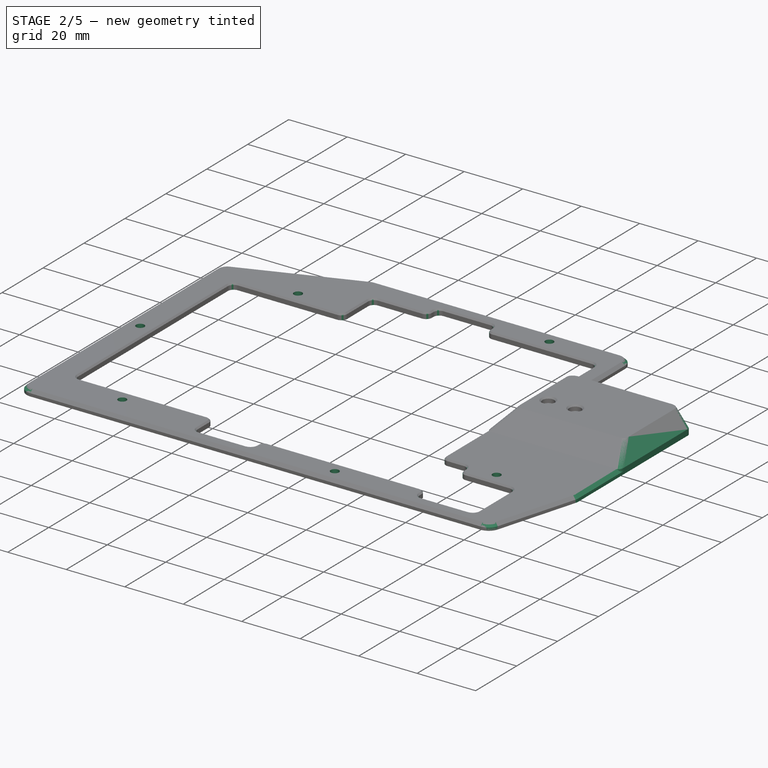
[diagram: stage 2 of 5 — iso view after this stage's code; geometry added in this stage tinted green]
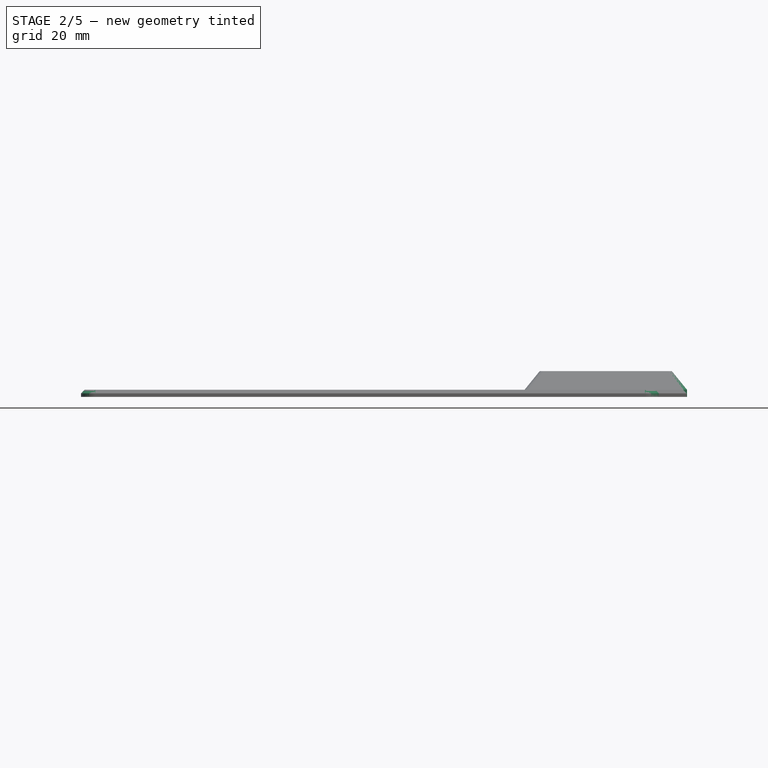
[diagram: stage 2 of 5 — front view after this stage's code; geometry added in this stage tinted green]
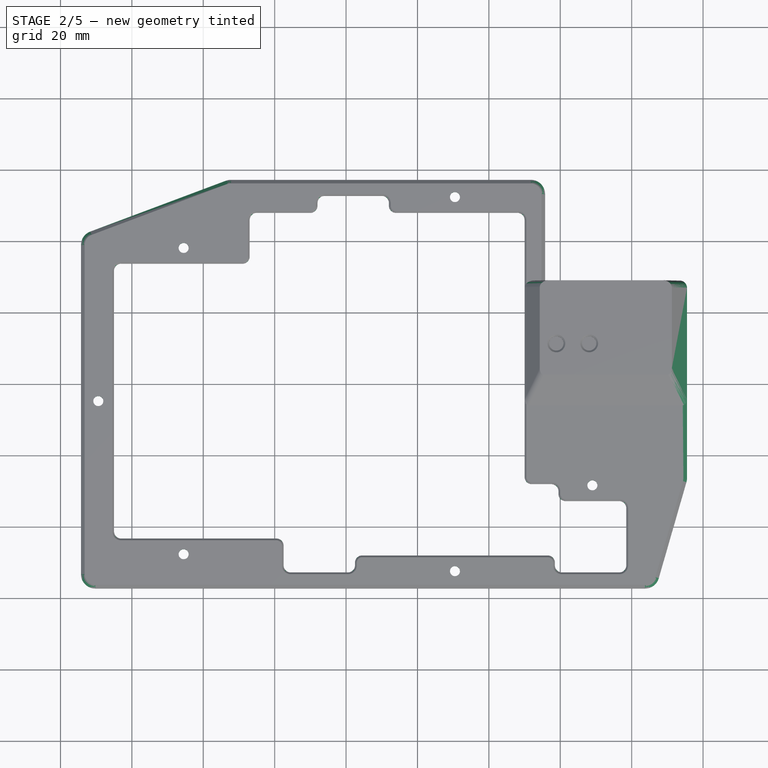
[diagram: stage 2 of 5 — top view after this stage's code; geometry added in this stage tinted green]
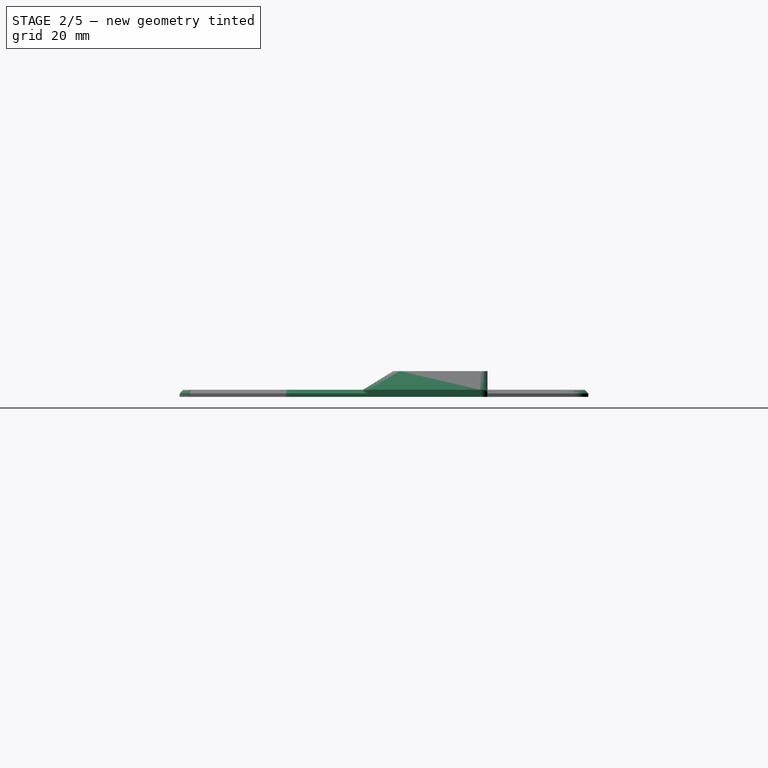
[diagram: stage 2 of 5 — right view after this stage's code; geometry added in this stage tinted green]
FEATURE [PartDesign::Pad] Pad003
  BaseFeature = -> Pocket008
  Direction = (1,0,0)
  Length = 2.75
  Length2 = 10
  Profile = -> Pocket008 [Face5]
  Refine = true
  Type = 0
FEATURE [Sketcher::SketchObject] Sketch012
  ExternalGeometry = -> [Pad003]
  FullyConstrained = true
  MapMode = 5
  Placement = pos=(-3e-16,29,6e-16) rot=(0,0.707107,0.707107;3.14159rad)
  Support = -> [Pad003]
  sketch-geometry (3):
    g0: LineSegment StartX=-55.5 StartY=2 StartZ=0 EndX=-51.25 EndY=7.24 EndZ=0
    g1: LineSegment StartX=-51.25 StartY=7.24 StartZ=0 EndX=-55.5 EndY=7.24 EndZ=0
    g2: LineSegment StartX=-55.5 StartY=7.24 StartZ=0 EndX=-55.5 EndY=2 EndZ=0
  constraints (7):
    c: Coincident(g0,g-5)
    c: PointOnObject(g0,g-3)
    c: Coincident(g1,g0)
    c: Coincident(g2,g1)
    c: Coincident(g2,g0)
    c: Coincident(g1,g-6)
    c: Horizontal(g1)
FEATURE [PartDesign::Pocket] Pocket009
  BaseFeature = -> Pad003
  Direction = (0,-1,-2e-16)
  Length = 5
  Length2 = 5
  Profile = -> Sketch012
  ReferenceAxis = -> Sketch012 [N_Axis]
  Type = 2
FEATURE [PartDesign::Fillet] Fillet
  Base = -> Pocket009 [Edge126,Edge65,Edge66,Edge124,Edge68]
  BaseFeature = -> Pocket009
  Radius = 2
  SupportTransform = false
  UseAllEdges = false
FEATURE [PartDesign::Chamfer] Chamfer
  Angle = 45
  Base = -> Fillet [Edge142,Edge141]
  BaseFeature = -> Fillet
  ChamferType = 0
  FlipDirection = false
  Size = 0.5
  Size2 = 1
  SupportTransform = false
  UseAllEdges = false
FEATURE [PartDesign::Fillet] Fillet001
  Base = -> Chamfer [Edge108,Edge138]
  BaseFeature = -> Chamfer
  Radius = 4
  SupportTransform = false
  UseAllEdges = false
FEATURE [Sketcher::SketchObject] Sketch013
  ExternalGeometry = -> [Fillet001]
  FullyConstrained = true
  MapMode = 5
  Placement = pos=(0,0,2) rot=(0,0,1;0rad)
  Support = -> [Fillet001]
  sketch-geometry (10):
    g0: ArcOfCircle CenterX=-110.25 CenterY=39 CenterZ=0 NormalX=0 NormalY=0 NormalZ=1 AngleXU=0 Radius=4 StartAngle=1.92957 EndAngle=3.14159
    g1: ArcOfCircle CenterX=-72.25 CenterY=53.25 CenterZ=0 NormalX=0 NormalY=0 NormalZ=1 AngleXU=0 Radius=4 StartAngle=1.5708 EndAngle=1.92957
    g2: LineSegment StartX=-111.654 StartY=42.7453 StartZ=0 EndX=-73.6545 EndY=56.9953 EndZ=0
    g3: LineSegment StartX=-114.25 StartY=39 StartZ=0 EndX=-114.25 EndY=57.25 EndZ=0
    g4: LineSegment StartX=-114.25 StartY=57.25 StartZ=0 EndX=-72.25 EndY=57.25 EndZ=0
    g5: ArcOfCircle CenterX=43.75 CenterY=-53.25 CenterZ=0 NormalX=0 NormalY=0 NormalZ=1 AngleXU=0 Radius=4 StartAngle=4.71239 EndAngle=6.00268
    g6: ArcOfCircle CenterX=51.5 CenterY=-26.35 CenterZ=0 NormalX=0 NormalY=0 NormalZ=1 AngleXU=0 Radius=4 StartAngle=6.00268 EndAngle=6.28319
    g7: LineSegment StartX=55.3437 StartY=-27.4574 StartZ=0 EndX=47.5937 EndY=-54.3574 EndZ=0
    g8: LineSegment StartX=43.75 StartY=-57.25 StartZ=0 EndX=55.5 EndY=-57.25 EndZ=0
    g9: LineSegment StartX=55.5 StartY=-26.35 StartZ=0 EndX=55.5 EndY=-57.25 EndZ=0
  constraints (24):
    c: Tangent(g0,g-4) = -1.5708
    c: DistanceX(g0,g0) = 4
    c: Tangent(g1,g-3) = -1.5708
    c: DistanceY(g1,g1) = 4
    c: Tangent(g2,g1) = 1.5708
    c: Tangent(g2,g0) = 1.5708
    c: DistanceY(g-6,g0) = 5.25
    c: DistanceX(g1,g-8) = 5.25
    c: Coincident(g3,g0)
    c: Coincident(g3,g-4)
    c: Coincident(g4,g3)
    c: Coincident(g4,g1)
    c: Tangent(g6,g-12) = -1.5708
    c: Tangent(g5,g-11) = -1.5708
    c: DistanceY(g5,g5) = 4
    c: DistanceX(g6,g6) = 4
    c: Tangent(g7,g6) = 1.5708
    c: Tangent(g7,g5) = 1.5708
    c: DistanceX(g-10,g5) = 5.25
    c: Coincident(g8,g5)
    c: Coincident(g9,g8)
    c: Coincident(g-12,g8)
    c: Coincident(g6,g9)
    c: DistanceY(g8,g6) = 30.9
FEATURE [PartDesign::Pocket] Pocket010
  BaseFeature = -> Fillet001
  Direction = (0,0,-1)
  Length = 5
  Length2 = 5
  Profile = -> Sketch013
  ReferenceAxis = -> Sketch013 [N_Axis]
  Type = 1
FEATURE [PartDesign::Fillet] Fillet002
  Base = -> Pocket010 [Edge93,Edge95,Edge97,Edge99,Edge101,Edge103,Edge105,Edge107,Edge109,Edge111,Edge113,Edge77,Edge91,Edge89,Edge87,Edge85,Edge83,Edge81,Edge79,Edge76]
  BaseFeature = -> Pocket010
  Radius = 2
  SupportTransform = false
  UseAllEdges = false
FEATURE [Sketcher::SketchObject] Sketch014
  ExternalGeometry = -> [Fillet002]
  FullyConstrained = true
  MapMode = 5
  Placement = pos=(-3e-16,29,6e-16) rot=(0,0.707107,0.707107;3.14159rad)
  Support = -> [Fillet002]
  sketch-geometry (3):
    g0: LineSegment StartX=-15.75 StartY=2 StartZ=0 EndX=-15.75 EndY=1 EndZ=0
    g1: LineSegment StartX=-15.75 StartY=1 StartZ=0 EndX=-14.75 EndY=2 EndZ=0
    g2: LineSegment StartX=-14.75 StartY=2 StartZ=0 EndX=-15.75 EndY=2 EndZ=0
  constraints (8):
    c: Coincident(g0,g-3)
    c: Vertical(g0)
    c: Coincident(g1,g0)
    c: Coincident(g2,g1)
    c: Coincident(g2,g0)
    c: Horizontal(g2)
    c: DistanceY(g0,g0) = 1
    c: DistanceX(g2,g2) = 1
FEATURE [PartDesign::SubtractivePipe] SubtractivePipe
  AuxilleryCurvelinear = true
  AuxillerySpineTangent = false
  BaseFeature = -> Fillet002
  Binormal = (0,0,0)
  Mode = 0
  Profile = -> Sketch014
  Spine = -> Fillet002 [Edge9,Edge11,Edge13,Edge15,Edge17,Edge19,Edge21,Edge23,Edge25,Edge27,Edge29,Edge31,Edge33,Edge35]
  SpineTangent = false
  Transformation = 0
  Transition = 0
FEATURE [PartDesign::Pad] Pad004
  BaseFeature = -> SubtractivePipe
  Direction = (0,0,-1)
  Length = 1
  Length2 = 10
  Profile = -> SubtractivePipe [Face64]
  Refine = true
  Type = 0
FEATURE [Sketcher::SketchObject] Sketch015
  ExternalGeometry = -> [Pad004]
  FullyConstrained = true
  MapMode = 5
  Placement = pos=(3e-16,29,6e-16) rot=(0,0.707107,0.707107;3.14159rad)
  Support = -> [Pad004]
  sketch-geometry (3):
    g0: LineSegment StartX=-10 StartY=2 StartZ=0 EndX=-10 EndY=1.5 EndZ=0
    g1: LineSegment StartX=-10 StartY=1.5 StartZ=0 EndX=-10.5 EndY=2 EndZ=0
    g2: LineSegment StartX=-10.5 StartY=2 StartZ=0 EndX=-10 EndY=2 EndZ=0
  constraints (8):
    c: Coincident(g0,g-3)
    c: Coincident(g1,g0)
    c: Coincident(g2,g1)
    c: Coincident(g2,g0)
    c: DistanceX(g2,g2) = 0.5
    c: DistanceY(g0,g0) = 0.5
    c: Horizontal(g2)
    c: Vertical(g0)
FEATURE [PartDesign::SubtractivePipe] SubtractivePipe001
  AuxilleryCurvelinear = true
  AuxillerySpineTangent = false
  BaseFeature = -> Pad004
  Binormal = (0,0,0)
  Mode = 0
  Profile = -> Sketch015
  Spine = -> Pad004 [Edge59,Edge1,Edge2,Edge3,Edge4,Edge5,Edge6,Edge7,Edge8,Edge9,Edge10,Edge11,Edge12,Edge13,Edge14,Edge15,Edge16,Edge17,Edge18,Edge19,Edge20,Edge21,Edge22,Edge23,Edge24,Edge25,Edge26,Edge27,Edge28,Edge29,Edge30,Edge31,Edge32,Edge33,Edge34,Edge35,Edge36,Edge37,Edge38,Edge39,+1 more]
  SpineTangent = false
  Transformation = 0
  Transition = 0
FEATURE [PartDesign::Pad] Pad005
  BaseFeature = -> SubtractivePipe001
  Direction = (0,0,-1)
  Length = 0.5
  Length2 = 10
  Profile = -> SubtractivePipe001 [Face131,Face102]
  Type = 0
FEATURE [Sketcher::SketchObject] Sketch016
  ExternalGeometry = -> [Pad005]
  FullyConstrained = true
  MapMode = 5
  Placement = pos=(0,0,2) rot=(0,0,1;0rad)
  Support = -> [Pad005]
  expr: Constraints[10] = Spreadsheet.hole_int
  expr: Constraints[11] = Spreadsheet.hole_int
  expr: Constraints[5] = Spreadsheet.hole_dia
  expr: Constraints[6] = Spreadsheet.hole_int
  expr: Constraints[7] = Spreadsheet.hole_int
  expr: Constraints[8] = Spreadsheet.hole_int
  expr: Constraints[9] = Spreadsheet.hole_int
  sketch-geometry (6):
    g0: Circle CenterX=-9.5 CenterY=-52.4 CenterZ=0 NormalX=0 NormalY=0 NormalZ=1 AngleXU=0 Radius=1.4
    g1: Circle CenterX=29 CenterY=-28.35 CenterZ=0 NormalX=0 NormalY=0 NormalZ=1 AngleXU=0 Radius=1.4
    g2: Circle CenterX=-85.5 CenterY=-47.65 CenterZ=0 NormalX=0 NormalY=0 NormalZ=1 AngleXU=0 Radius=1.4
    g3: Circle CenterX=-109.4 CenterY=-4.75 CenterZ=0 NormalX=0 NormalY=0 NormalZ=1 AngleXU=0 Radius=1.4
    g4: Circle CenterX=-85.5 CenterY=38.15 CenterZ=0 NormalX=0 NormalY=0 NormalZ=1 AngleXU=0 Radius=1.4
    g5: Circle CenterX=-9.5 CenterY=52.4 CenterZ=0 NormalX=0 NormalY=0 NormalZ=1 AngleXU=0 Radius=1.4
  constraints (15):
    c: Equal(g1,g0)
    c: Equal(g1, g2-g5) x4
    c: Diameter(g1) = 2.8
    c: DistanceY(g-8,g5) = 4.4
    c: DistanceY(g-7,g4) = 4.4
    c: DistanceY(g2,g-5) = 4.4
    c: DistanceY(g0,g-4) = 4.4
    c: DistanceY(g-3,g1) = 4.4
    c: DistanceX(g3,g-6) = 4.4
    c: DistanceX(g0,g-1) = 9.5
    c: DistanceX(g5,g-1) = 9.5
    c: DistanceX(g2,g-1) = 85.5
    c: DistanceX(g4,g-1) = 85.5
    c: DistanceY(g3,g-1) = 4.75
    c: DistanceX(g-1,g1) = 29
FEATURE [PartDesign::Pocket] Pocket011  label="Holes"
  BaseFeature = -> Pad005
  Direction = (0,0,-1)
  Length = 5
  Length2 = 5
  Profile = -> Sketch016
  ReferenceAxis = -> Sketch016 [N_Axis]
  Type = 1
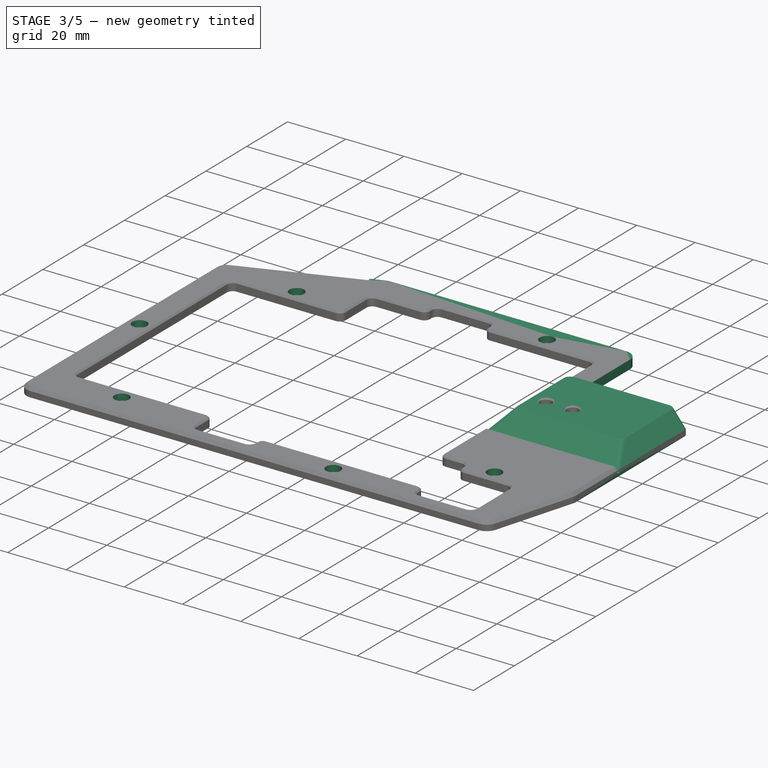
[diagram: stage 3 of 5 — iso view after this stage's code; geometry added in this stage tinted green]
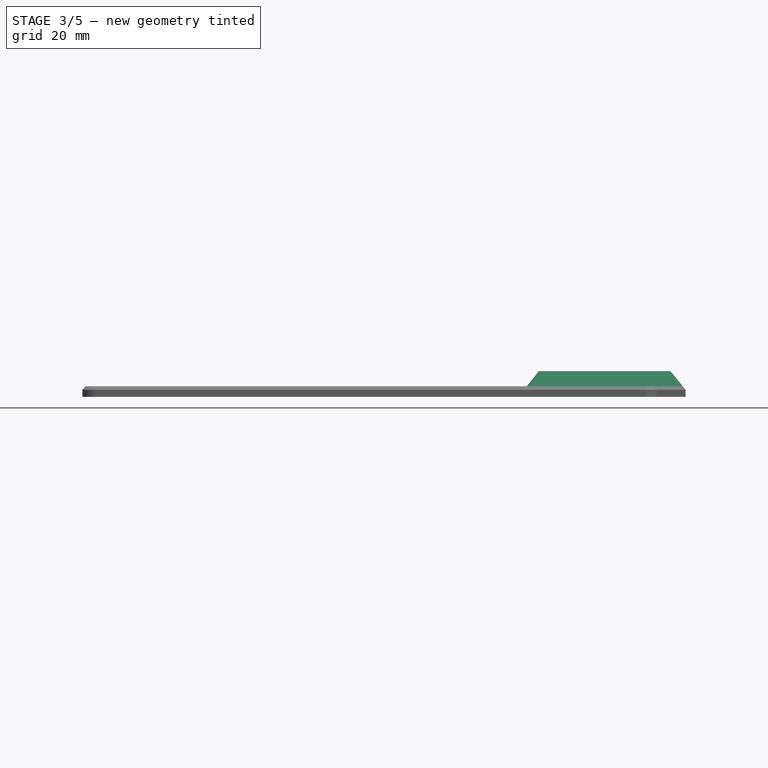
[diagram: stage 3 of 5 — front view after this stage's code; geometry added in this stage tinted green]
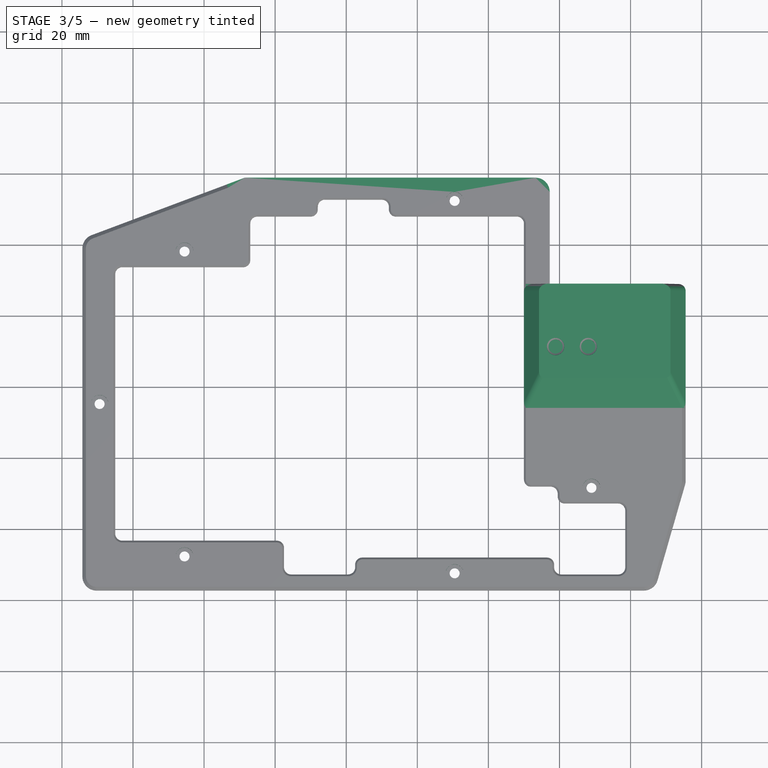
[diagram: stage 3 of 5 — top view after this stage's code; geometry added in this stage tinted green]
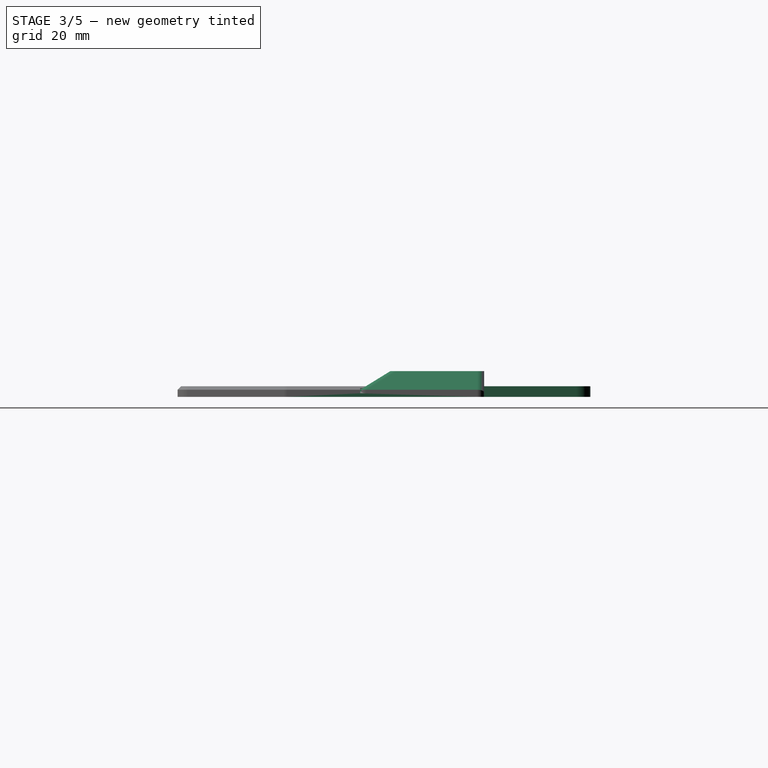
[diagram: stage 3 of 5 — right view after this stage's code; geometry added in this stage tinted green]
FEATURE [Sketcher::SketchObject] Sketch017
  ExternalGeometry = -> [Pocket011]
  FullyConstrained = true
  MapMode = 5
  Placement = pos=(0,0,2) rot=(0,0,1;0rad)
  Support = -> [Pocket011]
  sketch-geometry (6):
    g0: Circle CenterX=-109.4 CenterY=-4.75 CenterZ=0 NormalX=0 NormalY=0 NormalZ=1 AngleXU=0 Radius=2.5
    g1: Circle CenterX=-85.5 CenterY=-47.65 CenterZ=0 NormalX=0 NormalY=0 NormalZ=1 AngleXU=0 Radius=2.5
    g2: Circle CenterX=-9.5 CenterY=-52.4 CenterZ=0 NormalX=0 NormalY=0 NormalZ=1 AngleXU=0 Radius=2.5
    g3: Circle CenterX=29 CenterY=-28.35 CenterZ=0 NormalX=0 NormalY=0 NormalZ=1 AngleXU=0 Radius=2.5
    g4: Circle CenterX=-9.5 CenterY=52.4 CenterZ=0 NormalX=0 NormalY=0 NormalZ=1 AngleXU=0 Radius=2.5
    g5: Circle CenterX=-85.5 CenterY=38.15 CenterZ=0 NormalX=0 NormalY=0 NormalZ=1 AngleXU=0 Radius=2.5
  constraints (12):
    c: Coincident(g0,g-3)
    c: Coincident(g1,g-4)
    c: Coincident(g2,g-5)
    c: Coincident(g3,g-6)
    c: Coincident(g4,g-7)
    c: Coincident(g5,g-8)
    c: Equal(g0,g5)
    c: Equal(g0,g4)
    c: Equal(g0,g1)
    c: Equal(g0,g2)
    c: Equal(g0,g3)
    c: Diameter(g0) = 5
FEATURE [PartDesign::Pocket] Pocket012
  BaseFeature = -> Pocket011
  Direction = (0,0,-1)
  Length = 1.2
  Length2 = 5
  Profile = -> Sketch017
  ReferenceAxis = -> Sketch017 [N_Axis]
  Type = 0
FEATURE [Sketcher::SketchObject] Sketch018
  ExternalGeometry = -> [Pocket012]
  FullyConstrained = true
  MapMode = 5
  Placement = pos=(0,0,2) rot=(0,0,1;0rad)
  Support = -> [Pocket012]
  sketch-geometry (11):
    g0: LineSegment StartX=-73.6545 StartY=56.9953 StartZ=0 EndX=-68.5753 EndY=58.9 EndZ=0
    g1: LineSegment StartX=-68.5753 StartY=58.9 StartZ=0 EndX=17.25 EndY=58.9 EndZ=0
    g2: LineSegment StartX=17.25 StartY=58.9 StartZ=0 EndX=17.25 EndY=29 EndZ=0
    g3: LineSegment StartX=17.25 StartY=29 StartZ=0 EndX=13.75 EndY=29 EndZ=0
    g4: LineSegment StartX=13.75 StartY=29 StartZ=0 EndX=13.75 EndY=53.25 EndZ=0
    g5: LineSegment StartX=-73.6545 StartY=56.9953 StartZ=0 EndX=-72.9522 EndY=55.1227 EndZ=0
    g6: LineSegment StartX=-72.9522 StartY=55.1227 StartZ=0 EndX=-70.9522 EndY=55.1227 EndZ=0
    g7: LineSegment StartX=-70.9522 StartY=55.1227 StartZ=0 EndX=-70.9522 EndY=55.25 EndZ=0
    g8: LineSegment StartX=-70.9522 StartY=55.25 StartZ=0 EndX=11.75 EndY=55.25 EndZ=0
    g9: LineSegment StartX=11.75 StartY=55.25 StartZ=0 EndX=11.75 EndY=53.25 EndZ=0
    g10: LineSegment StartX=11.75 StartY=53.25 StartZ=0 EndX=13.75 EndY=53.25 EndZ=0
  constraints (34):
    c: DistanceY(g-3) = 57.25
    c: DistanceX(g-4) = 15.75
    c: Coincident(g0,g-5)
    c: Coincident(g1,g0)
    c: Horizontal(g1)
    c: Coincident(g2,g1)
    c: Vertical(g2)
    c: Coincident(g3,g2)
    c: Horizontal(g3)
    c: PointOnObject(g-4,g3)
    c: Coincident(g4,g3)
    c: Vertical(g4)
    c: Coincident(g5,g0)
    c: Coincident(g6,g5)
    c: Horizontal(g6)
    c: Coincident(g7,g6)
    c: Coincident(g8,g7)
    c: Horizontal(g8)
    c: Coincident(g9,g8)
    c: Coincident(g10,g9)
    c: Coincident(g10,g4)
    c: Horizontal(g10)
    c: Vertical(g9)
    c: Vertical(g7)
    c: Perpendicular(g0,g5)
    c: Parallel(g0,g-5)
    c: Distance(g5) = 2
    c: DistanceY(g-3,g1) = 1.65
    c: DistanceX(g-4,g1) = 1.5
    c: DistanceX(g3,g-4) = 2
    c: DistanceY(g8,g-3) = 2
    c: DistanceX(g6,g6) = 2
    c: DistanceX(g10,g10) = 2
    c: DistanceY(g9,g9) = 2
FEATURE [PartDesign::Pad] Pad006
  BaseFeature = -> Pocket012
  Direction = (0,0,1)
  Length = 2
  Length2 = 10
  Profile = -> Sketch018
  ReferenceAxis = -> Sketch018 [N_Axis]
  Refine = true
  Reversed = true
  Type = 0
FEATURE [PartDesign::Fillet] Fillet003
  Base = -> Pad006 [Edge295]
  BaseFeature = -> Pad006
  Radius = 4
  SupportTransform = false
  UseAllEdges = false
FEATURE [PartDesign::Plane] DatumPlane
  Length = 60
  MapMode = 5
  Placement = pos=(3e-16,29,6e-16) rot=(0,0.707107,0.707107;3.14159rad)
  ResizeMode = 0
  Support = -> [Fillet003]
  Width = 60
FEATURE [PartDesign::Plane] DatumPlane001
  AttachmentOffset = pos=(0,0,0) rot=(0,1,0;1.5708rad)
  Length = 60
  MapMode = 7
  Placement = pos=(11.1943,-5.9,2) rot=(1,0,0;1.5708rad)
  ResizeMode = 0
  Support = -> [Fillet003]
  Width = 60
FEATURE [PartDesign::Body] Body
  Group = -> [Sketch,Pad,Sketch001,Pocket,Sketch002,Pocket001,Sketch003,Pad001,Sketch004,Pad002,Sketch005,Pocket002,Sketch006,Pocket003,Sketch007,Pocket004,Sketch008,Pocket005,Sketch010,Pocket006,Sketch011,Pocket007,Pocket008,Pad003,Sketch012,Pocket009,Fillet,Chamfer,Fillet001,Sketch013,Pocket010,Fillet002,Sketch014,SubtractivePipe,Pad004,Sketch015,SubtractivePipe001,Pad005,Sketch016,Pocket011,Sketch017,+6 more]
  Origin = -> Origin
  Tip = -> Fillet003
FEATURE [Part::FeaturePython] Slice  # WARN: FeaturePython — macro-defined, semantics opaque (R4)
  Base = -> Fillet003
  Mode = 1
  Tolerance = 0
  Tools = -> [DatumPlane,DatumPlane001]
FEATURE [App::DocumentObjectGroup] GrExplode_Slice  label="Exploded Slice"
FEATURE [Part::FeaturePython] Slice_child1  label="Slice.1"  # WARN: FeaturePython — macro-defined, semantics opaque (R4)
  Base = -> Slice
  FilterType = 1
  Invert = false
  OverrideMaxVal = 0
  Placement = pos=(0,0,-1) rot=(0,0,1;0rad)
  WindowFrom = 80
  WindowTo = 100
  items = 1
FEATURE [Part::FeaturePython] Slice_child3  label="Slice.3"  # WARN: FeaturePython — macro-defined, semantics opaque (R4)
  Base = -> Slice
  FilterType = 1
  Invert = false
  OverrideMaxVal = 0
  WindowFrom = 80
  WindowTo = 100
  items = 3
FEATURE [Part::FeaturePython] Slice_child0  label="Slice.0"  # WARN: FeaturePython — macro-defined, semantics opaque (R4)
  Base = -> Slice
  FilterType = 1
  Invert = false
  OverrideMaxVal = 0
  WindowFrom = 80
  WindowTo = 100
  items = 0
FEATURE [Part::FeaturePython] Slice_child2  label="Slice.2"  # WARN: FeaturePython — macro-defined, semantics opaque (R4)
  Base = -> Slice
  FilterType = 1
  Invert = false
  OverrideMaxVal = 0
  WindowFrom = 80
  WindowTo = 100
  items = 2
FEATURE [Part::MultiFuse] Fusion
  Shapes = -> [Slice_child0,Slice_child1,Slice_child2,Slice_child3]
FEATURE [PartDesign::FeatureBase] BaseFeature
  BaseFeature = -> Fusion
FEATURE [PartDesign::Pad] Pad007
  BaseFeature = -> BaseFeature
  Direction = (0,0,-1)
  Length = 1
  Length2 = 10
  Profile = -> BaseFeature [Face99,Face49,Face5]
  Refine = true
  Type = 0
FEATURE [PartDesign::Pocket] Pocket013
  BaseFeature = -> Pad007
  Direction = (0,0,-1)
  Length = 1
  Length2 = 5
  Profile = -> Pad007 [Face105,Face103,Face145,Face97,Face99,Face101]
  Refine = true
  Type = 0
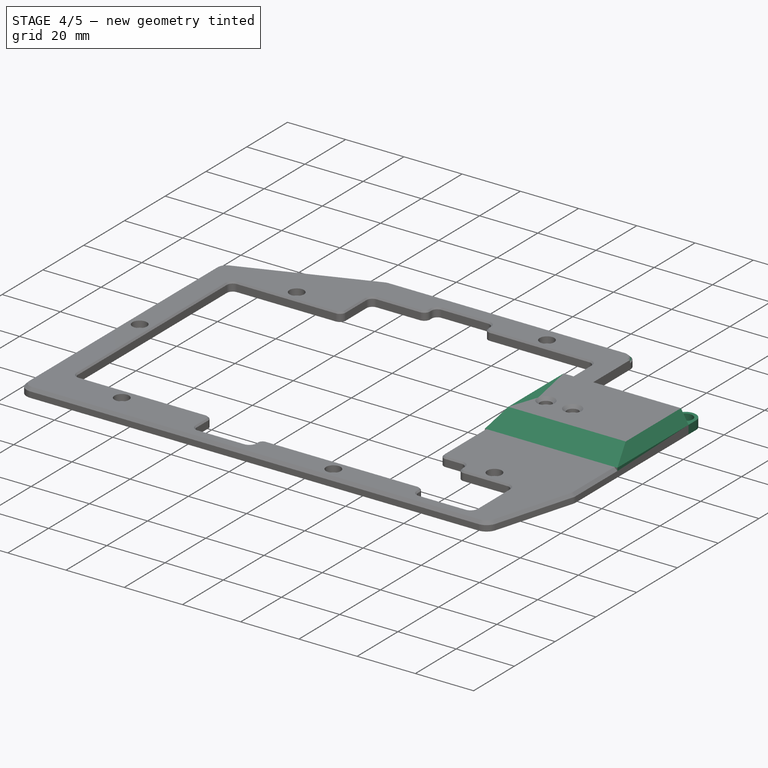
[diagram: stage 4 of 5 — iso view after this stage's code; geometry added in this stage tinted green]
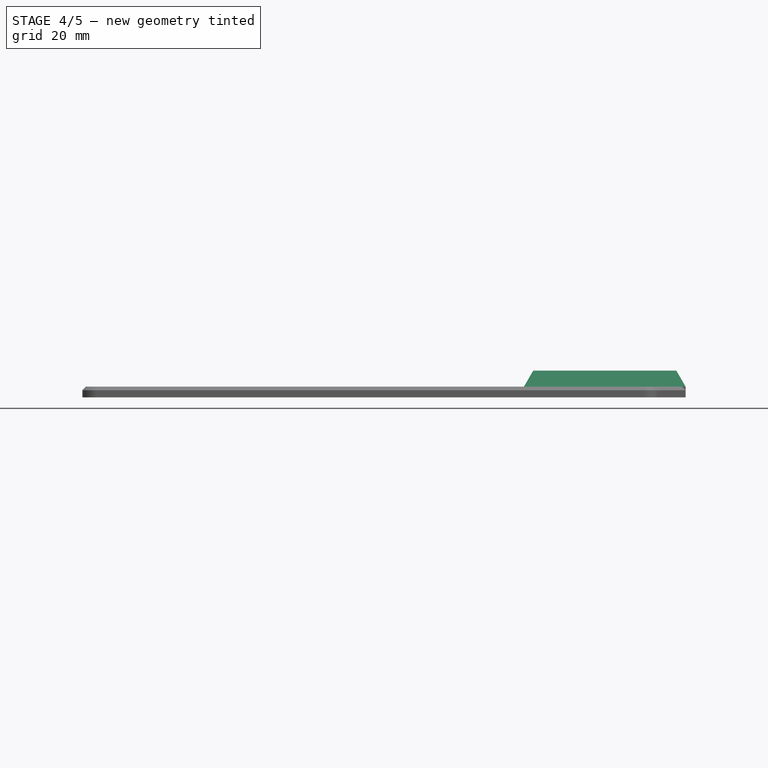
[diagram: stage 4 of 5 — front view after this stage's code; geometry added in this stage tinted green]
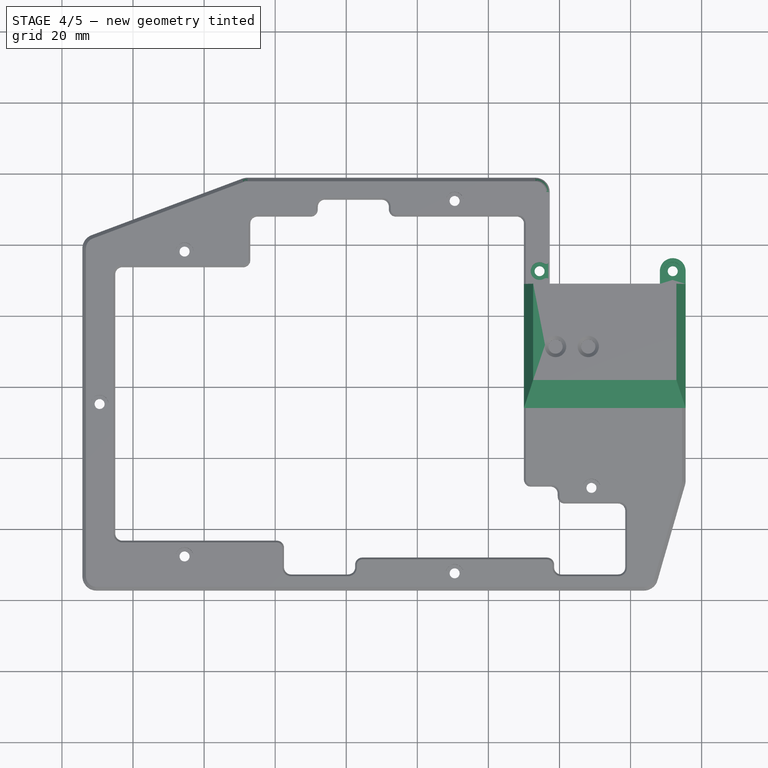
[diagram: stage 4 of 5 — top view after this stage's code; geometry added in this stage tinted green]
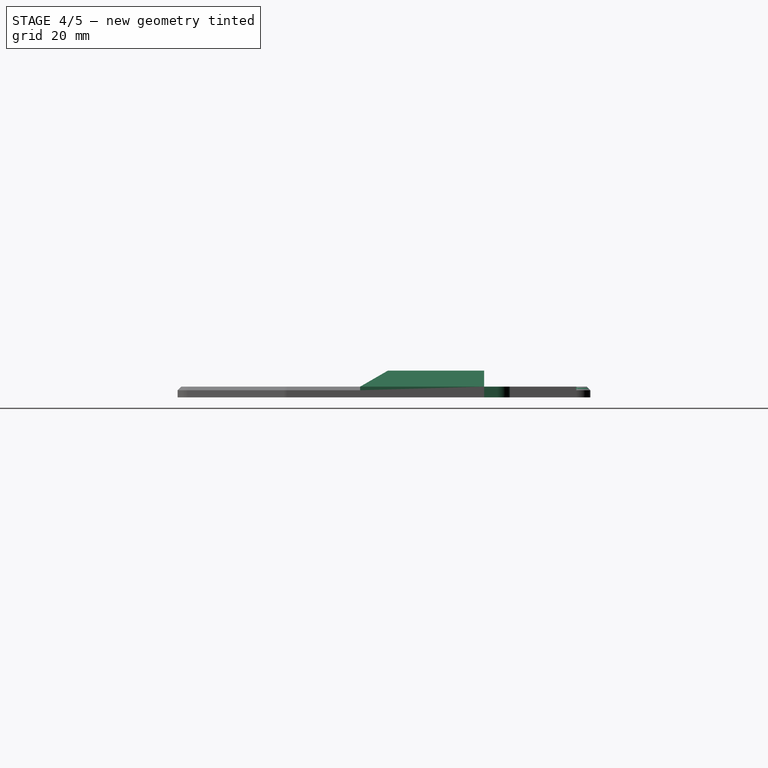
[diagram: stage 4 of 5 — right view after this stage's code; geometry added in this stage tinted green]
FEATURE [Sketcher::SketchObject] Sketch019
  ExternalGeometry = -> [Pocket013]
  FullyConstrained = true
  MapMode = 5
  Placement = pos=(0,0,-1) rot=(1,0,0;3.14159rad)
  Support = -> [Pocket013]
  sketch-geometry (10):
    g0: LineSegment StartX=17.25 StartY=-29 StartZ=0 EndX=10 EndY=-29 EndZ=0
    g1: LineSegment StartX=10 StartY=-29 StartZ=0 EndX=10 EndY=5.9 EndZ=0
    g2: LineSegment StartX=10 StartY=5.9 StartZ=0 EndX=55.5 EndY=5.9 EndZ=0
    g3: LineSegment StartX=14.25 StartY=-27.6 StartZ=0 EndX=17.25 EndY=-27.6 EndZ=0
    g4: LineSegment StartX=17.25 StartY=-27.6 StartZ=0 EndX=17.25 EndY=-29 EndZ=0
    g5: LineSegment StartX=14.25 StartY=-27.6 StartZ=0 EndX=14.25 EndY=-2.6 EndZ=0
    g6: LineSegment StartX=14.25 StartY=-2.6 StartZ=0 EndX=51.25 EndY=-2.6 EndZ=0
    g7: LineSegment StartX=51.25 StartY=-2.6 StartZ=0 EndX=51.25 EndY=-29 EndZ=0
    g8: LineSegment StartX=51.25 StartY=-29 StartZ=0 EndX=55.5 EndY=-29 EndZ=0
    g9: LineSegment StartX=55.5 StartY=-29 StartZ=0 EndX=55.5 EndY=5.9 EndZ=0
  constraints (26):
    c: Coincident(g0,g-3)
    c: PointOnObject(g0,g-4)
    c: Horizontal(g0)
    c: Coincident(g1,g0)
    c: PointOnObject(g1,g-4)
    c: Coincident(g2,g1)
    c: PointOnObject(g2,g-5)
    c: Horizontal(g2)
    c: PointOnObject(g-6,g2)
    c: Coincident(g3,g-9)
    c: PointOnObject(g3,g-9)
    c: Coincident(g4,g3)
    c: Coincident(g4,g0)
    c: Vertical(g4)
    c: Coincident(g5,g3)
    c: Coincident(g5,g-8)
    c: Coincident(g6,g5)
    c: Coincident(g6,g-8)
    c: Coincident(g7,g6)
    c: PointOnObject(g7,g-11)
    c: Vertical(g7)
    c: Coincident(g8,g7)
    c: Horizontal(g8)
    c: Coincident(g9,g8)
    c: Coincident(g9,g2)
    c: Vertical(g9)
FEATURE [PartDesign::Pad] Pad008
  BaseFeature = -> Pocket013
  Direction = (0,0,-1)
  Length = 7.5
  Length2 = 10
  Profile = -> Sketch019
  ReferenceAxis = -> Sketch019 [N_Axis]
  Reversed = true
  Type = 0
FEATURE [PartDesign::Pad] Pad009
  BaseFeature = -> Pad008
  Direction = (-1,0,0)
  Length = 3
  Length2 = 10
  Profile = -> Pad008 [Face21]
  Type = 0
FEATURE [PartDesign::Pad] Pad010
  BaseFeature = -> Pad009
  Direction = (1,0,0)
  Length = 2
  Length2 = 10
  Profile = -> Pad009 [Face27]
  Type = 0
FEATURE [Sketcher::SketchObject] Sketch020
  ExternalGeometry = -> [Pad010]
  FullyConstrained = true
  MapMode = 5
  Placement = pos=(0,0,6.5) rot=(0,0,1;0rad)
  Support = -> [Pad010]
  sketch-geometry (6):
    g0: LineSegment StartX=10 StartY=29 StartZ=0 EndX=55.5 EndY=29 EndZ=0
    g1: LineSegment StartX=55.5 StartY=29 StartZ=0 EndX=55.5 EndY=-5.9 EndZ=0
    g2: LineSegment StartX=55.5 StartY=-5.9 StartZ=0 EndX=10 EndY=-5.9 EndZ=0
    g3: LineSegment StartX=10 StartY=-5.9 StartZ=0 EndX=10 EndY=29 EndZ=0
    g4: Circle CenterX=18.9 CenterY=11.32 CenterZ=0 NormalX=0 NormalY=0 NormalZ=1 AngleXU=0 Radius=2
    g5: Circle CenterX=28.1 CenterY=11.32 CenterZ=0 NormalX=0 NormalY=0 NormalZ=1 AngleXU=0 Radius=2
  constraints (14):
    c: Coincident(g0,g1)
    c: Coincident(g1,g2)
    c: Coincident(g2,g3)
    c: Coincident(g3,g0)
    c: Horizontal(g0)
    c: Horizontal(g2)
    c: Vertical(g1)
    c: Vertical(g3)
    c: Coincident(g0,g-5)
    c: Coincident(g1,g-6)
    c: Coincident(g4,g-3)
    c: Coincident(g5,g-4)
    c: Equal(g5,g4)
    c: Diameter(g5) = 4
FEATURE [PartDesign::Pad] Pad011
  BaseFeature = -> Pad010
  Direction = (0,0,1)
  Length = 1
  Length2 = 10
  Profile = -> Sketch020
  ReferenceAxis = -> Sketch020 [N_Axis]
  Refine = true
  Reversed = true
  Type = 0
FEATURE [PartDesign::Chamfer] Chamfer001
  Angle = 30
  Base = -> Pad011 [Edge373,Edge370]
  BaseFeature = -> Pad011
  ChamferType = 2
  FlipDirection = false
  Size = 4.5
  Size2 = 2
  SupportTransform = false
  UseAllEdges = false
FEATURE [Sketcher::SketchObject] Sketch021
  ExternalGeometry = -> [Chamfer001]
  FullyConstrained = true
  MapMode = 5
  Placement = pos=(55.5,-6.55e-14,-6.27e-14) rot=(0.57735,0.57735,0.57735;2.0944rad)
  Support = -> [Chamfer001]
  sketch-geometry (3):
    g0: LineSegment StartX=-5.9 StartY=2 StartZ=0 EndX=-5.9 EndY=6.5 EndZ=0
    g1: LineSegment StartX=-5.9 StartY=6.5 StartZ=0 EndX=1.89423 EndY=6.5 EndZ=0
    g2: LineSegment StartX=1.89423 StartY=6.5 StartZ=0 EndX=-5.9 EndY=2 EndZ=0
  constraints (7):
    c: Coincident(g0,g-3)
    c: Coincident(g0,g-4)
    c: Coincident(g1,g0)
    c: Horizontal(g1)
    c: Coincident(g2,g1)
    c: Coincident(g2,g0)
    c: Angle(g2,g0) = 1.0472
FEATURE [PartDesign::Pocket] Pocket014
  BaseFeature = -> Chamfer001
  Direction = (-1,1.1e-15,1.1e-15)
  Length = 46
  Length2 = 5
  Profile = -> Sketch021
  ReferenceAxis = -> Sketch021 [N_Axis]
  Type = 0
FEATURE [Sketcher::SketchObject] Sketch022
  ExternalGeometry = -> [Pocket014]
  FullyConstrained = true
  MapMode = 5
  Placement = pos=(0,0,-1) rot=(1,0,0;3.14159rad)
  Support = -> [Pocket014]
  sketch-geometry (6):
    g0: Circle CenterX=51.875 CenterY=-32.625 CenterZ=0 NormalX=0 NormalY=0 NormalZ=1 AngleXU=0 Radius=1.4
    g1: ArcOfCircle CenterX=51.875 CenterY=-32.625 CenterZ=0 NormalX=0 NormalY=0 NormalZ=1 AngleXU=0 Radius=3.625 StartAngle=3.14159 EndAngle=6.28319
    g2: LineSegment StartX=48.25 StartY=-32.625 StartZ=0 EndX=48.25 EndY=-29 EndZ=0
    g3: LineSegment StartX=48.25 StartY=-29 StartZ=0 EndX=55.5 EndY=-29 EndZ=0
    g4: LineSegment StartX=55.5 StartY=-29 StartZ=0 EndX=55.5 EndY=-32.625 EndZ=0
    g5: LineSegment StartX=48.25 StartY=-29 StartZ=0 EndX=51.875 EndY=-32.625 EndZ=0
  constraints (15):
    c: Coincident(g1,g0)
    c: PointOnObject(g2,g-3)
    c: Coincident(g3,g2)
    c: Coincident(g3,g-3)
    c: Coincident(g4,g3)
    c: Vertical(g4)
    c: Vertical(g2)
    c: Tangent(g2,g1) = 1.5708
    c: Tangent(g4,g1) = 1.5708
    c: Diameter(g0) = 2.8
    c: Diameter(g-4) = 2.8
    c: DistanceX(g3,g3) = 7.25
    c: Coincident(g5,g2)
    c: Coincident(g5,g0)
    c: Angle(g5,g3) = 0.785398
FEATURE [PartDesign::Pad] Pad012
  BaseFeature = -> Pocket014
  Direction = (0,0,-1)
  Length = 3
  Length2 = 10
  Profile = -> Sketch022
  ReferenceAxis = -> Sketch022 [N_Axis]
  Reversed = true
  Type = 0
FEATURE [Sketcher::SketchObject] Sketch023
  ExternalGeometry = -> [Pad012]
  FullyConstrained = true
  MapMode = 5
  Placement = pos=(1.983e-13,3.6e-15,2) rot=(0,0,1;0rad)
  Support = -> [Pad012]
  sketch-geometry (1):
    g0: Circle CenterX=14.4 CenterY=32.625 CenterZ=0 NormalX=0 NormalY=0 NormalZ=1 AngleXU=0 Radius=1.4
  constraints (3):
    c: Diameter(g0) = 2.8
    c: Horizontal(g0,g-3)
    c: DistanceX(g0,g-4) = 2.85
FEATURE [PartDesign::Pocket] Pocket015
  BaseFeature = -> Pad012
  Direction = (-9.92e-14,-1.8e-15,-1)
  Length = 5
  Length2 = 5
  Profile = -> Sketch023
  ReferenceAxis = -> Sketch023 [N_Axis]
  Type = 0
FEATURE [Sketcher::SketchObject] Sketch024
  ExternalGeometry = -> [Pocket015]
  FullyConstrained = true
  MapMode = 5
  Placement = pos=(1.983e-13,3.6e-15,2) rot=(0,0,1;0rad)
  Support = -> [Pocket015]
  sketch-geometry (5):
    g0: ArcOfCircle CenterX=14.4 CenterY=32.625 CenterZ=0 NormalX=0 NormalY=0 NormalZ=1 AngleXU=0 Radius=2.5 StartAngle=1.01388 EndAngle=5.26931
    g1: Circle CenterX=51.875 CenterY=32.625 CenterZ=0 NormalX=0 NormalY=0 NormalZ=1 AngleXU=0 Radius=2.5
    g2: LineSegment StartX=17.25 StartY=35.5961 StartZ=0 EndX=17.25 EndY=29.6539 EndZ=0
    g3: ArcOfCircle CenterX=16.25 CenterY=29.6539 CenterZ=0 NormalX=0 NormalY=0 NormalZ=1 AngleXU=0 Radius=1 StartAngle=-9e-16 EndAngle=2.12771
    g4: ArcOfCircle CenterX=16.25 CenterY=35.5961 CenterZ=0 NormalX=0 NormalY=0 NormalZ=1 AngleXU=0 Radius=1 StartAngle=4.15547 EndAngle=6.28319
  constraints (13):
    c: Coincident(g0,g-3)
    c: Coincident(g1,g-4)
    c: Diameter(g-5) = 5
    c: Equal(g0,g1)
    c: Diameter(g0) = 5
    c: PointOnObject(g2,g-6)
    c: PointOnObject(g2,g-6)
    c: Tangent(g4,g2) = 1.5708
    c: Tangent(g3,g2) = 1.5708
    c: Tangent(g0,g3) = 1.5708
    c: Tangent(g0,g4) = 1.5708
    c: Equal(g3,g4)
    c: Radius(g3) = 1
FEATURE [PartDesign::Pocket] Pocket016
  BaseFeature = -> Pocket015
  Direction = (-9.92e-14,-1.8e-15,-1)
  Length = 2.2
  Length2 = 5
  Profile = -> Sketch024
  ReferenceAxis = -> Sketch024 [N_Axis]
  Type = 0
FEATURE [PartDesign::Chamfer] Chamfer002
  Angle = 45
  Base = -> Pocket016 [Edge177,Edge178]
  BaseFeature = -> Pocket016
  ChamferType = 0
  FlipDirection = false
  Size = 1
  Size2 = 1
  SupportTransform = false
  UseAllEdges = false
FEATURE [PartDesign::Fillet] Fillet004
  Base = -> Chamfer002 [Edge324]
  BaseFeature = -> Chamfer002
  Radius = 4
  SupportTransform = false
  UseAllEdges = false
FEATURE [PartDesign::SubtractivePipe] SubtractivePipe002
  AuxilleryCurvelinear = true
  AuxillerySpineTangent = false
  BaseFeature = -> Fillet004
  Binormal = (0,0,0)
  Mode = 0
  Profile = -> Fillet004 [Face4]
  Spine = -> Fillet004 [Edge1,Edge2,Edge4,Edge6]
  SpineTangent = false
  Transformation = 0
  Transition = 0
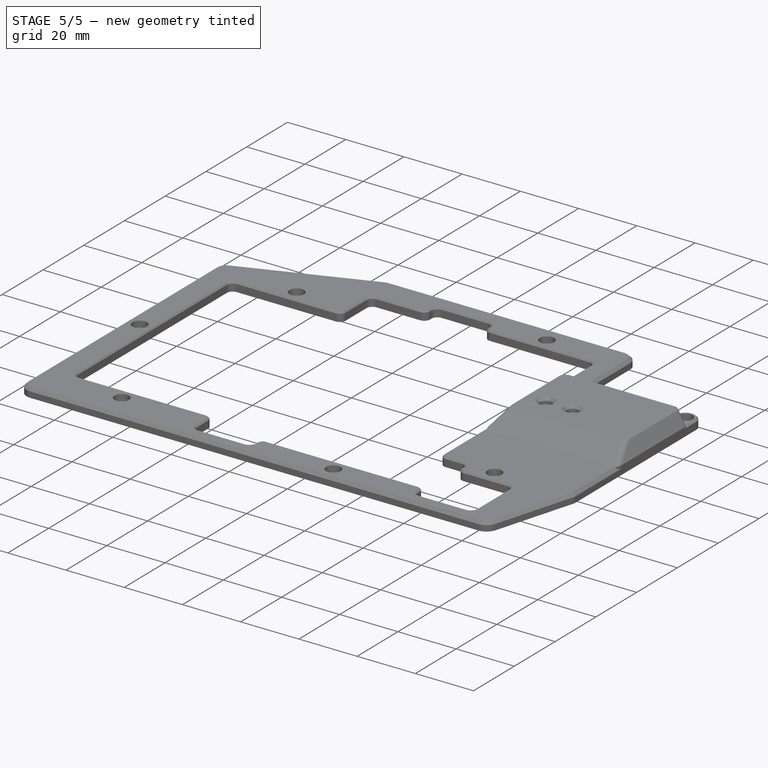
[diagram: stage 5 of 5 — iso view after this stage's code; geometry added in this stage tinted green]
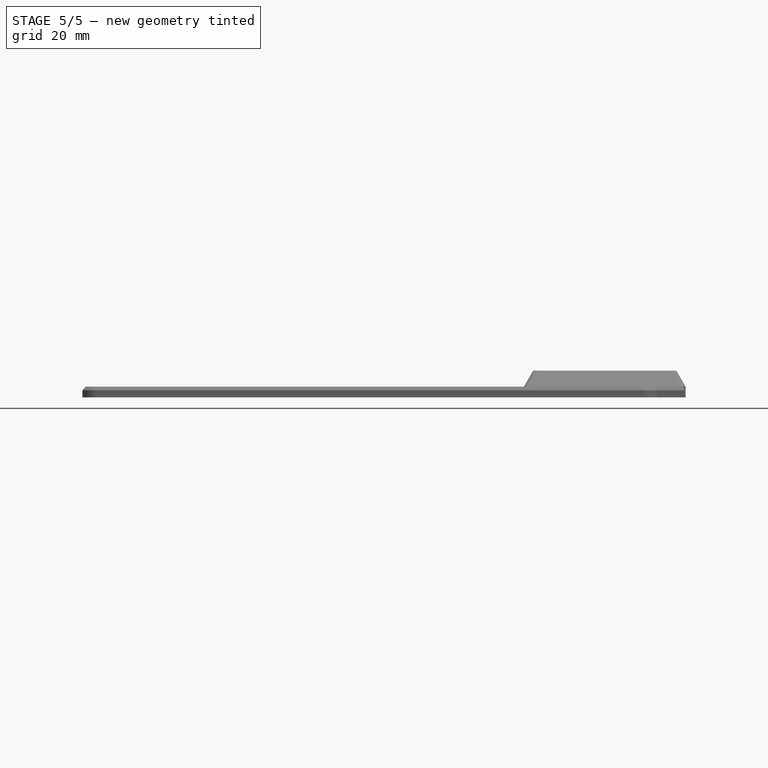
[diagram: stage 5 of 5 — front view after this stage's code; geometry added in this stage tinted green]
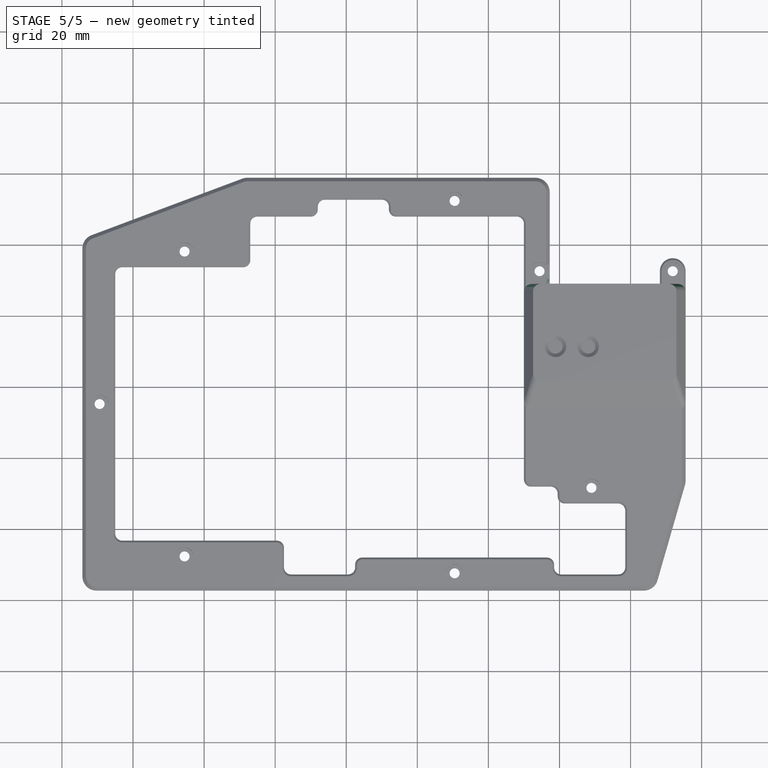
[diagram: stage 5 of 5 — top view after this stage's code; geometry added in this stage tinted green]
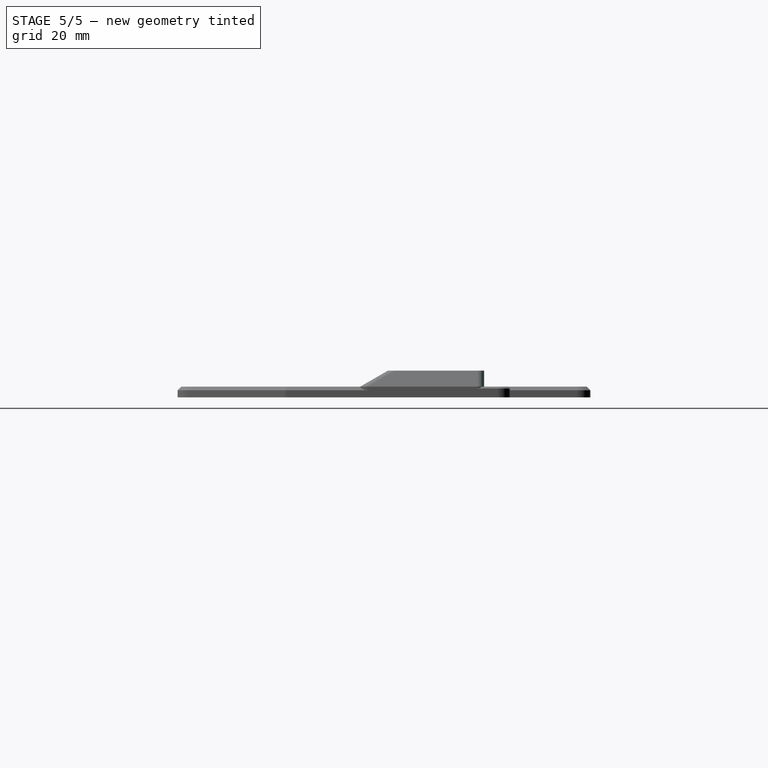
[diagram: stage 5 of 5 — right view after this stage's code; geometry added in this stage tinted green]
FEATURE [PartDesign::Pocket] Pocket017
  BaseFeature = -> SubtractivePipe002
  Direction = (1.25e-14,-1,1.25e-14)
  Length = 25.9
  Length2 = 5
  Profile = -> SubtractivePipe002 [Face6]
  Refine = true
  Type = 0
FEATURE [Sketcher::SketchObject] Sketch025
  ExternalGeometry = -> [Pocket017]
  FullyConstrained = true
  MapMode = 5
  Placement = pos=(1.2e-15,29,1.4e-15) rot=(0,0.707107,0.707107;3.14159rad)
  Support = -> [Pocket017]
  sketch-geometry (3):
    g0: LineSegment StartX=-10.5 StartY=2 StartZ=0 EndX=-10 EndY=2 EndZ=0
    g1: LineSegment StartX=-10 StartY=2 StartZ=0 EndX=-10 EndY=1.5 EndZ=0
    g2: LineSegment StartX=-10 StartY=1.5 StartZ=0 EndX=-10.5 EndY=2 EndZ=0
  constraints (7):
    c: Coincident(g0,g-3)
    c: Horizontal(g0)
    c: Coincident(g1,g0)
    c: Coincident(g1,g-3)
    c: Coincident(g2,g1)
    c: Coincident(g2,g0)
    c: Vertical(g1)
FEATURE [PartDesign::Fillet] Fillet005
  Base = -> Pocket017 [Edge231,Edge224]
  BaseFeature = -> Pocket017
  Radius = 2
  SupportTransform = false
  UseAllEdges = false
FEATURE [PartDesign::Pocket] Pocket018
  BaseFeature = -> Fillet005
  Direction = (0,-1,-2e-16)
  Length = 2
  Length2 = 5
  Profile = -> Sketch025
  ReferenceAxis = -> Sketch025 [N_Axis]
  Type = 0
FEATURE [PartDesign::Pad] Pad013
  BaseFeature = -> Pocket018
  Direction = (0,2e-16,-1)
  Length = 1
  Length2 = 10
  Profile = -> Pocket018 [Face85]
  Type = 0
FEATURE [Sketcher::SketchObject] Sketch026
  ExternalGeometry = -> [Pad013]
  FullyConstrained = true
  MapMode = 5
  Placement = pos=(0,0,-1) rot=(1,0,0;3.14159rad)
  Support = -> [Pad013]
  sketch-geometry (4):
    g0: LineSegment StartX=10 StartY=1.9 StartZ=0 EndX=55.5 EndY=1.9 EndZ=0
    g1: LineSegment StartX=55.5 StartY=1.9 StartZ=0 EndX=55.5 EndY=6.9 EndZ=0
    g2: LineSegment StartX=55.5 StartY=6.9 StartZ=0 EndX=10 EndY=6.9 EndZ=0
    g3: LineSegment StartX=10 StartY=6.9 StartZ=0 EndX=10 EndY=1.9 EndZ=0
  constraints (12):
    c: Coincident(g0,g1)
    c: Coincident(g1,g2)
    c: Coincident(g2,g3)
    c: Coincident(g3,g0)
    c: Horizontal(g0)
    c: Horizontal(g2)
    c: Vertical(g1)
    c: Vertical(g3)
    c: PointOnObject(g2,g-3)
    c: PointOnObject(g1,g-4)
    c: DistanceY(g3,g3) = 5
    c: DistanceY(g-5,g2) = 1
FEATURE [PartDesign::Pocket] Pocket019
  BaseFeature = -> Pad013
  Direction = (0,0,1)
  Length = 3
  Length2 = 5
  Profile = -> Sketch026
  ReferenceAxis = -> Sketch026 [N_Axis]
  Type = 0
FEATURE [PartDesign::Fillet] Fillet006
  Base = -> Pocket019 [Edge229,Edge410]
  BaseFeature = -> Pocket019
  Radius = 2
  SupportTransform = false
  UseAllEdges = false
FEATURE [PartDesign::Pad] Pad014
  BaseFeature = -> Fillet006
  Direction = (0,1,0)
  Length = 4
  Length2 = 10
  Profile = -> Fillet006 [Face77]
  Type = 0
FEATURE [PartDesign::Pad] Pad015
  BaseFeature = -> Pad014
  Direction = (0,0,-1)
  Length = 3
  Length2 = 10
  Profile = -> Pad014 [Face5]
  Refine = true
  Type = 0
FEATURE [Sketcher::SketchObject] Sketch027
  ExternalGeometry = -> [Pad015]
  FullyConstrained = true
  MapMode = 5
  Placement = pos=(55.5,-7.27e-14,-1.981e-13) rot=(0.57735,0.57735,0.57735;2.0944rad)
  Support = -> [Pad015]
  sketch-geometry (4):
    g0: LineSegment StartX=27 StartY=2 StartZ=0 EndX=29 EndY=2 EndZ=0
    g1: LineSegment StartX=29 StartY=2 StartZ=0 EndX=29 EndY=1 EndZ=0
    g2: LineSegment StartX=29 StartY=1 StartZ=0 EndX=27 EndY=1 EndZ=0
    g3: LineSegment StartX=27 StartY=1 StartZ=0 EndX=27 EndY=2 EndZ=0
  constraints (11):
    c: Coincident(g0,g1)
    c: Coincident(g1,g2)
    c: Coincident(g2,g3)
    c: Coincident(g3,g0)
    c: Horizontal(g0)
    c: Horizontal(g2)
    c: Vertical(g1)
    c: Vertical(g3)
    c: Coincident(g0,g-3)
    c: DistanceX(g0,g0) = 2
    c: DistanceY(g3,g3) = 1
FEATURE [PartDesign::Pocket] Pocket020
  BaseFeature = -> Pad015
  Direction = (-1,1.3e-15,3.6e-15)
  Length = 2
  Length2 = 5
  Profile = -> Sketch027
  ReferenceAxis = -> Sketch027 [N_Axis]
  Type = 0
FEATURE [PartDesign::Chamfer] Chamfer003
  Angle = 45
  Base = -> Pocket020 [Edge327]
  BaseFeature = -> Pocket020
  ChamferType = 0
  FlipDirection = false
  Size = 0.5
  Size2 = 1
  SupportTransform = false
  UseAllEdges = false
FEATURE [PartDesign::Pad] Pad016
  BaseFeature = -> Chamfer003
  Direction = (-1.3e-15,-1,0)
  Length = 2
  Length2 = 10
  Profile = -> Chamfer003 [Face2]
  Type = 0
FEATURE [PartDesign::Pad] Pad017
  BaseFeature = -> Pad016
  Direction = (-3.6e-15,0,-1)
  Length = 1
  Length2 = 10
  Profile = -> Pad016 [Face15]
  Refine = true
  Type = 0
FEATURE [PartDesign::Body] Body001  label="Zawartość"
  BaseFeature = -> Fusion
  Group = -> [BaseFeature,Pad007,Pocket013,Sketch019,Pad008,Pad009,Pad010,Sketch020,Pad011,Chamfer001,Sketch021,Pocket014,Sketch022,Pad012,Sketch023,Pocket015,Sketch024,Pocket016,Chamfer002,Fillet004,SubtractivePipe002,Pocket017,Sketch025,Fillet005,Pocket018,Pad013,Sketch026,Pocket019,Fillet006,Pad014,Pad015,Sketch027,Pocket020,Chamfer003,Pad016,Pad017]
  Origin = -> Origin001
  Tip = -> Pad017
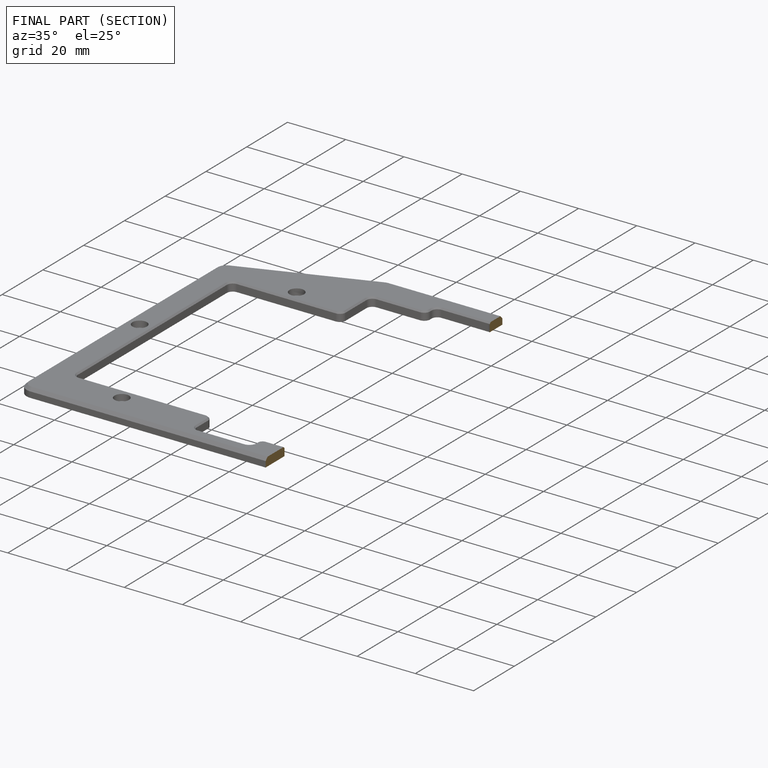
[diagram: finished part — half-section view (interior)]
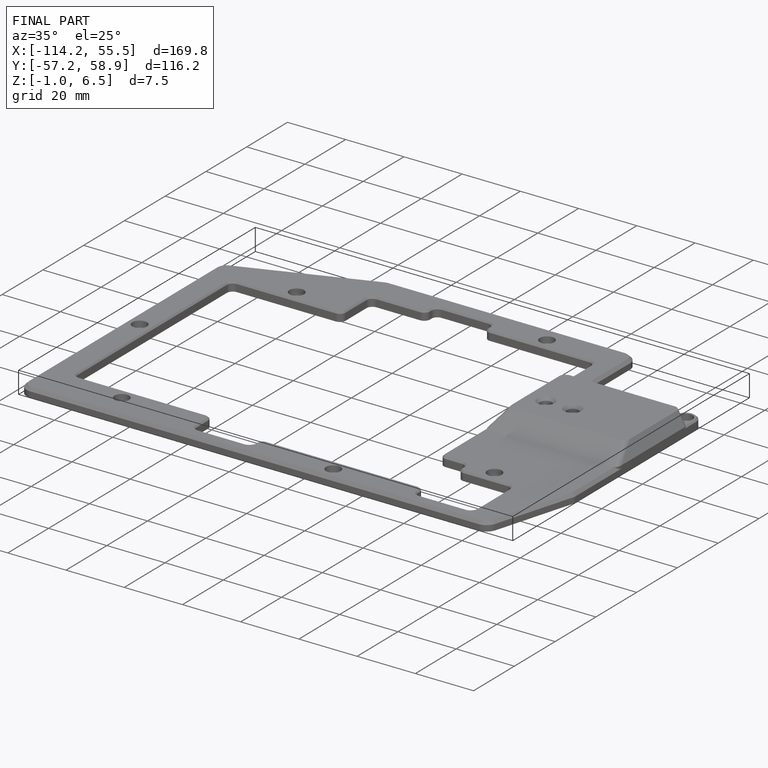
[diagram: finished part — iso view with bounding-box wireframe]
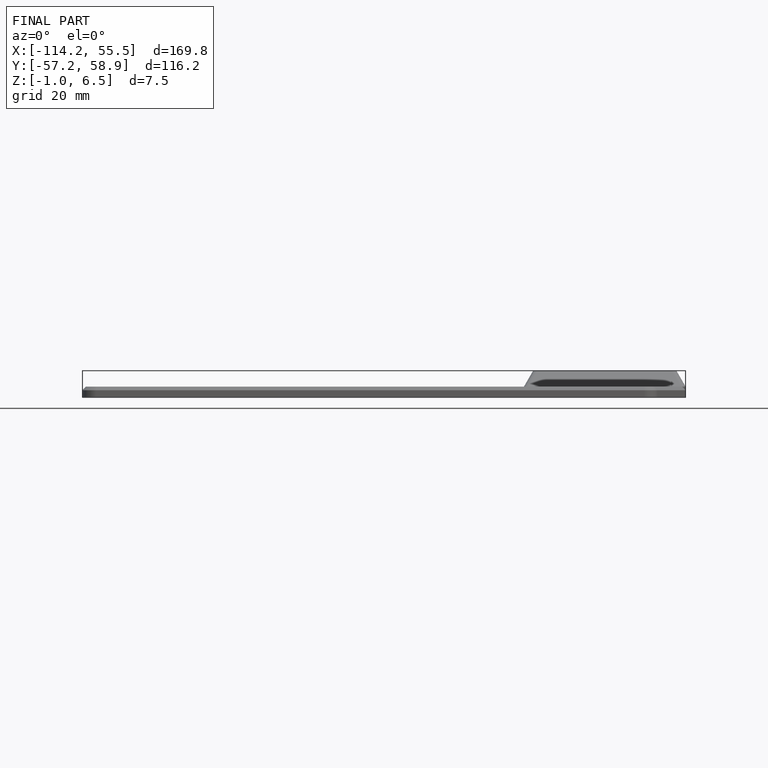
[diagram: finished part — front view with bounding-box wireframe]
